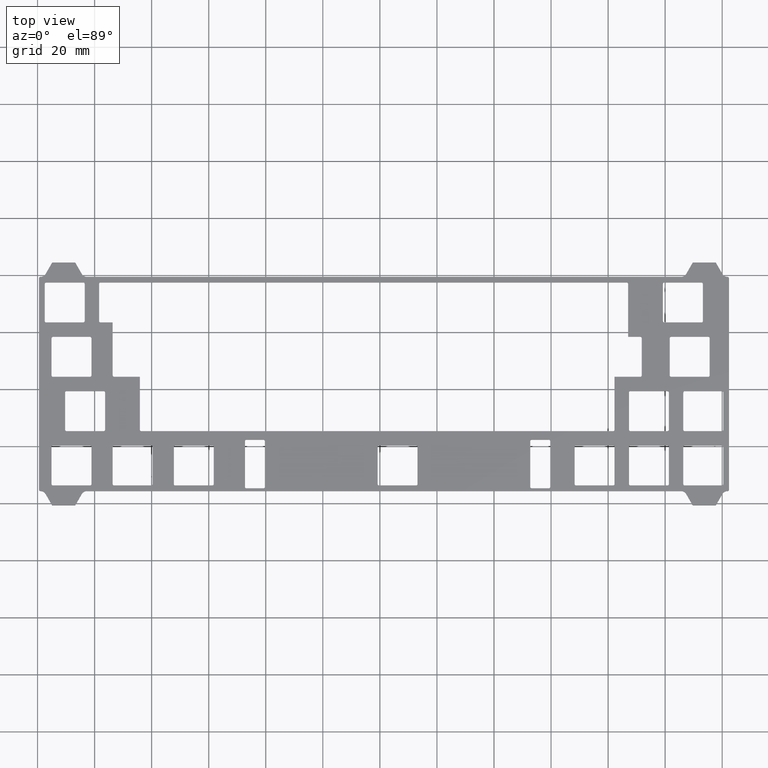
[diagram: clean part render]
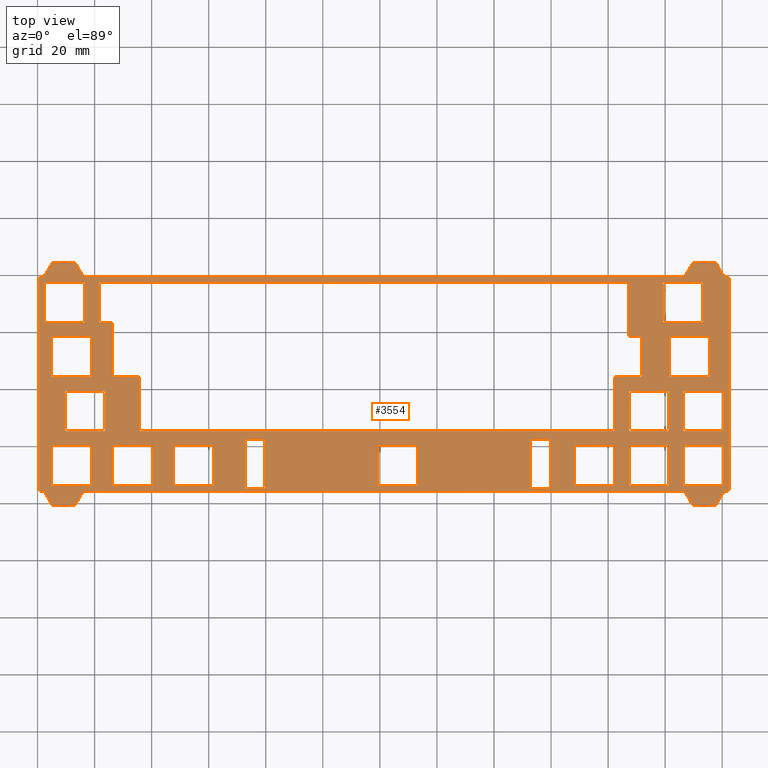
[diagram: same view with one face highlighted and labeled with its STEP entity id]
A machine part, top view. The second image highlights one B-rep face of the part: STEP entity #3554.
In plain terms, the highlighted planar face has unit normal (0, 0, 1).
Its self-contained STEP definition (entity closure, byte-faithful):
#15=FACE_BOUND('',#517,.T.);
#16=FACE_BOUND('',#518,.T.);
#17=FACE_BOUND('',#519,.T.);
#18=FACE_BOUND('',#520,.T.);
#19=FACE_BOUND('',#521,.T.);
#20=FACE_BOUND('',#522,.T.);
#21=FACE_BOUND('',#523,.T.);
#22=FACE_BOUND('',#524,.T.);
#23=FACE_BOUND('',#525,.T.);
#24=FACE_BOUND('',#526,.T.);
#25=FACE_BOUND('',#527,.T.);
#26=FACE_BOUND('',#528,.T.);
#27=FACE_BOUND('',#529,.T.);
#28=FACE_BOUND('',#530,.T.);
#29=FACE_BOUND('',#531,.T.);
#30=FACE_BOUND('',#532,.T.);
#31=FACE_BOUND('',#533,.T.);
#50=CIRCLE('',#3722,1.99999999999995);
#52=CIRCLE('',#3726,1.99999999999997);
#54=CIRCLE('',#3732,2.);
#56=CIRCLE('',#3736,0.500000000000011);
#58=CIRCLE('',#3740,0.500000000000002);
#60=CIRCLE('',#3744,2.);
#62=CIRCLE('',#3750,1.99999999999996);
#64=CIRCLE('',#3754,1.99999999999996);
#66=CIRCLE('',#3760,1.99999999999999);
#68=CIRCLE('',#3764,0.499999999999972);
#70=CIRCLE('',#3768,0.500000000000016);
#72=CIRCLE('',#3772,2.);
#73=CIRCLE('',#3775,0.500000000000007);
#74=CIRCLE('',#3776,0.499999999999998);
#75=CIRCLE('',#3777,0.500000000000007);
#76=CIRCLE('',#3778,0.499999999999998);
#77=CIRCLE('',#3779,0.500000000000007);
#78=CIRCLE('',#3780,0.499999999999998);
#79=CIRCLE('',#3781,0.500000000000007);
#80=CIRCLE('',#3782,0.499999999999998);
#81=CIRCLE('',#3783,0.500000000000007);
#82=CIRCLE('',#3784,0.499999999999998);
#83=CIRCLE('',#3785,0.500000000000007);
#84=CIRCLE('',#3786,0.499999999999998);
#85=CIRCLE('',#3787,0.500000000000007);
#86=CIRCLE('',#3788,0.499999999999998);
#87=CIRCLE('',#3789,0.500000000000007);
#88=CIRCLE('',#3790,0.499999999999998);
#89=CIRCLE('',#3791,0.5);
#90=CIRCLE('',#3792,0.499999999999998);
#91=CIRCLE('',#3793,0.5);
#92=CIRCLE('',#3794,0.499999999999998);
#93=CIRCLE('',#3795,0.500000000000003);
#94=CIRCLE('',#3796,0.499999999999998);
#95=CIRCLE('',#3797,0.499999999999998);
#96=CIRCLE('',#3798,0.499999999999998);
#97=CIRCLE('',#3799,0.500000000000007);
#98=CIRCLE('',#3800,0.499999999999998);
#99=CIRCLE('',#3801,0.500000000000007);
#100=CIRCLE('',#3802,0.499999999999998);
#101=CIRCLE('',#3803,0.499999999999998);
#102=CIRCLE('',#3804,0.499999999999998);
#103=CIRCLE('',#3805,0.499999999999998);
#104=CIRCLE('',#3806,0.499999999999998);
#105=CIRCLE('',#3807,0.499999999999998);
#106=CIRCLE('',#3808,0.500000000000007);
#107=CIRCLE('',#3809,0.499999999999998);
#108=CIRCLE('',#3810,0.500000000000007);
#109=CIRCLE('',#3811,0.499999999999998);
#110=CIRCLE('',#3812,0.499999999999998);
#111=CIRCLE('',#3813,0.5);
#112=CIRCLE('',#3814,0.499999999999998);
#113=CIRCLE('',#3815,0.500000000000007);
#114=CIRCLE('',#3816,0.499999999999998);
#115=CIRCLE('',#3817,0.500000000000007);
#116=CIRCLE('',#3818,0.499999999999998);
#117=CIRCLE('',#3819,0.499999999999998);
#118=CIRCLE('',#3820,0.5);
#119=CIRCLE('',#3821,0.499999999999998);
#120=CIRCLE('',#3822,0.5);
#121=CIRCLE('',#3823,0.500000000000007);
#122=CIRCLE('',#3824,0.5);
#123=CIRCLE('',#3825,0.500000000000007);
#124=CIRCLE('',#3826,0.5);
#125=CIRCLE('',#3827,0.5);
#126=CIRCLE('',#3828,0.5);
#127=CIRCLE('',#3829,0.5);
#128=CIRCLE('',#3830,0.5);
#129=CIRCLE('',#3831,0.499999999999998);
#130=CIRCLE('',#3832,0.499999999999998);
#131=CIRCLE('',#3833,0.499999999999998);
#132=CIRCLE('',#3834,0.5);
#133=CIRCLE('',#3835,0.500000000000007);
#134=CIRCLE('',#3836,0.500000000000007);
#135=CIRCLE('',#3837,0.499999999999998);
#136=CIRCLE('',#3838,0.499999999999998);
#137=CIRCLE('',#3839,0.499999999999972);
#138=CIRCLE('',#3840,0.499999999999972);
#139=CIRCLE('',#3841,0.499999999999998);
#140=CIRCLE('',#3842,0.500000000000007);
#141=CIRCLE('',#3843,0.499999999999998);
#142=CIRCLE('',#3844,0.499999999999998);
#143=CIRCLE('',#3845,0.499999999999998);
#144=CIRCLE('',#3846,0.499999999999998);
#334=FACE_OUTER_BOUND('',#516,.T.);
#516=EDGE_LOOP('',(#2475,#2476,#2477,#2478,#2479,#2480,#2481,#2482,#2483,
#2484,#2485,#2486,#2487,#2488,#2489,#2490,#2491,#2492,#2493,#2494,#2495,
#2496,#2497,#2498,#2499,#2500,#2501,#2502,#2503,#2504,#2505,#2506));
#517=EDGE_LOOP('',(#2507,#2508,#2509,#2510,#2511,#2512,#2513,#2514));
#518=EDGE_LOOP('',(#2515,#2516,#2517,#2518,#2519,#2520,#2521,#2522));
#519=EDGE_LOOP('',(#2523,#2524,#2525,#2526,#2527,#2528,#2529,#2530));
#520=EDGE_LOOP('',(#2531,#2532,#2533,#2534,#2535,#2536,#2537,#2538));
#521=EDGE_LOOP('',(#2539,#2540,#2541,#2542,#2543,#2544,#2545,#2546));
#522=EDGE_LOOP('',(#2547,#2548,#2549,#2550,#2551,#2552,#2553,#2554));
#523=EDGE_LOOP('',(#2555,#2556,#2557,#2558,#2559,#2560,#2561,#2562));
#524=EDGE_LOOP('',(#2563,#2564,#2565,#2566,#2567,#2568,#2569,#2570));
#525=EDGE_LOOP('',(#2571,#2572,#2573,#2574,#2575,#2576,#2577,#2578));
#526=EDGE_LOOP('',(#2579,#2580,#2581,#2582,#2583,#2584,#2585,#2586));
#527=EDGE_LOOP('',(#2587,#2588,#2589,#2590,#2591,#2592,#2593,#2594));
#528=EDGE_LOOP('',(#2595,#2596,#2597,#2598,#2599,#2600,#2601,#2602));
#529=EDGE_LOOP('',(#2603,#2604,#2605,#2606,#2607,#2608,#2609,#2610));
#530=EDGE_LOOP('',(#2611,#2612,#2613,#2614,#2615,#2616,#2617,#2618));
#531=EDGE_LOOP('',(#2619,#2620,#2621,#2622,#2623,#2624,#2625,#2626,#2627,
#2628,#2629,#2630,#2631,#2632,#2633,#2634,#2635,#2636,#2637,#2638));
#532=EDGE_LOOP('',(#2639,#2640,#2641,#2642,#2643,#2644,#2645,#2646));
#533=EDGE_LOOP('',(#2647,#2648,#2649,#2650,#2651,#2652,#2653,#2654));
#701=LINE('',#5149,#1073);
#704=LINE('',#5155,#1076);
#707=LINE('',#5161,#1079);
#711=LINE('',#5173,#1083);
#715=LINE('',#5185,#1087);
#718=LINE('',#5191,#1090);
#721=LINE('',#5197,#1093);
#725=LINE('',#5209,#1097);
#729=LINE('',#5221,#1101);
#733=LINE('',#5233,#1105);
#737=LINE('',#5245,#1109);
#740=LINE('',#5251,#1112);
#743=LINE('',#5257,#1115);
#747=LINE('',#5269,#1119);
#751=LINE('',#5281,#1123);
#754=LINE('',#5287,#1126);
#757=LINE('',#5293,#1129);
#761=LINE('',#5305,#1133);
#765=LINE('',#5317,#1137);
#769=LINE('',#5329,#1141);
#774=LINE('',#5342,#1146);
#775=LINE('',#5346,#1147);
#776=LINE('',#5350,#1148);
#777=LINE('',#5354,#1149);
#778=LINE('',#5358,#1150);
#779=LINE('',#5362,#1151);
#780=LINE('',#5366,#1152);
#781=LINE('',#5370,#1153);
#782=LINE('',#5374,#1154);
#783=LINE('',#5378,#1155);
#784=LINE('',#5382,#1156);
#785=LINE('',#5386,#1157);
#786=LINE('',#5390,#1158);
#787=LINE('',#5394,#1159);
#788=LINE('',#5398,#1160);
#789=LINE('',#5402,#1161);
#790=LINE('',#5406,#1162);
#791=LINE('',#5410,#1163);
#792=LINE('',#5414,#1164);
#793=LINE('',#5418,#1165);
#794=LINE('',#5422,#1166);
#795=LINE('',#5426,#1167);
#796=LINE('',#5430,#1168);
#797=LINE('',#5434,#1169);
#798=LINE('',#5438,#1170);
#799=LINE('',#5442,#1171);
#800=LINE('',#5446,#1172);
#801=LINE('',#5450,#1173);
#802=LINE('',#5454,#1174);
#803=LINE('',#5460,#1175);
#804=LINE('',#5464,#1176);
#805=LINE('',#5468,#1177);
#806=LINE('',#5471,#1178);
#807=LINE('',#5474,#1179);
#808=LINE('',#5478,#1180);
#809=LINE('',#5482,#1181);
#810=LINE('',#5486,#1182);
#811=LINE('',#5490,#1183);
#812=LINE('',#5494,#1184);
#813=LINE('',#5498,#1185);
#814=LINE('',#5502,#1186);
#815=LINE('',#5506,#1187);
#816=LINE('',#5510,#1188);
#817=LINE('',#5514,#1189);
#818=LINE('',#5518,#1190);
#819=LINE('',#5524,#1191);
#820=LINE('',#5528,#1192);
#821=LINE('',#5532,#1193);
#822=LINE('',#5535,#1194);
#823=LINE('',#5538,#1195);
#824=LINE('',#5542,#1196);
#825=LINE('',#5546,#1197);
#826=LINE('',#5550,#1198);
#827=LINE('',#5554,#1199);
#828=LINE('',#5558,#1200);
#829=LINE('',#5562,#1201);
#830=LINE('',#5566,#1202);
#831=LINE('',#5570,#1203);
#832=LINE('',#5574,#1204);
#833=LINE('',#5576,#1205);
#834=LINE('',#5580,#1206);
#835=LINE('',#5582,#1207);
#836=LINE('',#5586,#1208);
#837=LINE('',#5590,#1209);
#838=LINE('',#5593,#1210);
#839=LINE('',#5597,#1211);
#840=LINE('',#5601,#1212);
#841=LINE('',#5603,#1213);
#842=LINE('',#5607,#1214);
#843=LINE('',#5611,#1215);
#844=LINE('',#5615,#1216);
#845=LINE('',#5619,#1217);
#846=LINE('',#5623,#1218);
#847=LINE('',#5627,#1219);
#848=LINE('',#5631,#1220);
#849=LINE('',#5635,#1221);
#1073=VECTOR('',#4073,10.);
#1076=VECTOR('',#4078,10.);
#1079=VECTOR('',#4083,10.);
#1083=VECTOR('',#4095,10.);
#1087=VECTOR('',#4107,10.);
#1090=VECTOR('',#4112,10.);
#1093=VECTOR('',#4117,10.);
#1097=VECTOR('',#4129,10.);
#1101=VECTOR('',#4141,10.);
#1105=VECTOR('',#4153,10.);
#1109=VECTOR('',#4165,10.);
#1112=VECTOR('',#4170,10.);
#1115=VECTOR('',#4175,10.);
#1119=VECTOR('',#4187,10.);
#1123=VECTOR('',#4199,10.);
#1126=VECTOR('',#4204,10.);
#1129=VECTOR('',#4209,10.);
#1133=VECTOR('',#4221,10.);
#1137=VECTOR('',#4233,10.);
#1141=VECTOR('',#4245,10.);
#1146=VECTOR('',#4258,10.);
#1147=VECTOR('',#4261,10.);
#1148=VECTOR('',#4264,10.);
#1149=VECTOR('',#4267,10.);
#1150=VECTOR('',#4270,10.);
#1151=VECTOR('',#4273,10.);
#1152=VECTOR('',#4276,10.);
#1153=VECTOR('',#4279,10.);
#1154=VECTOR('',#4282,10.);
#1155=VECTOR('',#4285,10.);
#1156=VECTOR('',#4288,10.);
#1157=VECTOR('',#4291,10.);
#1158=VECTOR('',#4294,10.);
#1159=VECTOR('',#4297,10.);
#1160=VECTOR('',#4300,10.);
#1161=VECTOR('',#4303,10.);
#1162=VECTOR('',#4306,10.);
#1163=VECTOR('',#4309,10.);
#1164=VECTOR('',#4312,10.);
#1165=VECTOR('',#4315,10.);
#1166=VECTOR('',#4318,10.);
#1167=VECTOR('',#4321,10.);
#1168=VECTOR('',#4324,10.);
#1169=VECTOR('',#4327,10.);
#1170=VECTOR('',#4330,10.);
#1171=VECTOR('',#4333,10.);
#1172=VECTOR('',#4336,10.);
#1173=VECTOR('',#4339,10.);
#1174=VECTOR('',#4342,10.);
#1175=VECTOR('',#4347,10.);
#1176=VECTOR('',#4350,10.);
#1177=VECTOR('',#4353,10.);
#1178=VECTOR('',#4356,10.);
#1179=VECTOR('',#4357,10.);
#1180=VECTOR('',#4360,10.);
#1181=VECTOR('',#4363,10.);
#1182=VECTOR('',#4366,10.);
#1183=VECTOR('',#4369,10.);
#1184=VECTOR('',#4372,10.);
#1185=VECTOR('',#4375,10.);
#1186=VECTOR('',#4378,10.);
#1187=VECTOR('',#4381,10.);
#1188=VECTOR('',#4384,10.);
#1189=VECTOR('',#4387,10.);
#1190=VECTOR('',#4390,10.);
#1191=VECTOR('',#4395,10.);
#1192=VECTOR('',#4398,10.);
#1193=VECTOR('',#4401,10.);
#1194=VECTOR('',#4404,10.);
#1195=VECTOR('',#4405,10.);
#1196=VECTOR('',#4408,10.);
#1197=VECTOR('',#4411,10.);
#1198=VECTOR('',#4414,10.);
#1199=VECTOR('',#4417,10.);
#1200=VECTOR('',#4420,10.);
#1201=VECTOR('',#4423,10.);
#1202=VECTOR('',#4426,10.);
#1203=VECTOR('',#4429,10.);
#1204=VECTOR('',#4432,10.);
#1205=VECTOR('',#4433,10.);
#1206=VECTOR('',#4436,10.);
#1207=VECTOR('',#4437,10.);
#1208=VECTOR('',#4440,10.);
#1209=VECTOR('',#4443,10.);
#1210=VECTOR('',#4446,10.);
#1211=VECTOR('',#4449,10.);
#1212=VECTOR('',#4452,10.);
#1213=VECTOR('',#4453,10.);
#1214=VECTOR('',#4456,10.);
#1215=VECTOR('',#4459,10.);
#1216=VECTOR('',#4462,10.);
#1217=VECTOR('',#4465,10.);
#1218=VECTOR('',#4468,10.);
#1219=VECTOR('',#4471,10.);
#1220=VECTOR('',#4474,10.);
#1221=VECTOR('',#4477,10.);
#1445=VERTEX_POINT('',#5146);
#1446=VERTEX_POINT('',#5148);
#1448=VERTEX_POINT('',#5154);
#1450=VERTEX_POINT('',#5160);
#1452=VERTEX_POINT('',#5166);
#1454=VERTEX_POINT('',#5172);
#1456=VERTEX_POINT('',#5178);
#1458=VERTEX_POINT('',#5184);
#1460=VERTEX_POINT('',#5190);
#1462=VERTEX_POINT('',#5196);
#1464=VERTEX_POINT('',#5202);
#1466=VERTEX_POINT('',#5208);
#1468=VERTEX_POINT('',#5214);
#1470=VERTEX_POINT('',#5220);
#1472=VERTEX_POINT('',#5226);
#1474=VERTEX_POINT('',#5232);
#1476=VERTEX_POINT('',#5238);
#1478=VERTEX_POINT('',#5244);
#1480=VERTEX_POINT('',#5250);
#1482=VERTEX_POINT('',#5256);
#1484=VERTEX_POINT('',#5262);
#1486=VERTEX_POINT('',#5268);
#1488=VERTEX_POINT('',#5274);
#1490=VERTEX_POINT('',#5280);
#1492=VERTEX_POINT('',#5286);
#1494=VERTEX_POINT('',#5292);
#1496=VERTEX_POINT('',#5298);
#1498=VERTEX_POINT('',#5304);
#1500=VERTEX_POINT('',#5310);
#1502=VERTEX_POINT('',#5316);
#1504=VERTEX_POINT('',#5322);
#1506=VERTEX_POINT('',#5328);
#1507=VERTEX_POINT('',#5335);
#1510=VERTEX_POINT('',#5340);
#1511=VERTEX_POINT('',#5344);
#1512=VERTEX_POINT('',#5345);
#1513=VERTEX_POINT('',#5347);
#1514=VERTEX_POINT('',#5349);
#1515=VERTEX_POINT('',#5351);
#1516=VERTEX_POINT('',#5353);
#1517=VERTEX_POINT('',#5355);
#1518=VERTEX_POINT('',#5357);
#1519=VERTEX_POINT('',#5360);
#1520=VERTEX_POINT('',#5361);
#1521=VERTEX_POINT('',#5363);
#1522=VERTEX_POINT('',#5365);
#1523=VERTEX_POINT('',#5367);
#1524=VERTEX_POINT('',#5369);
#1525=VERTEX_POINT('',#5371);
#1526=VERTEX_POINT('',#5373);
#1527=VERTEX_POINT('',#5376);
#1528=VERTEX_POINT('',#5377);
#1529=VERTEX_POINT('',#5379);
#1530=VERTEX_POINT('',#5381);
#1531=VERTEX_POINT('',#5383);
#1532=VERTEX_POINT('',#5385);
#1533=VERTEX_POINT('',#5387);
#1534=VERTEX_POINT('',#5389);
#1535=VERTEX_POINT('',#5392);
#1536=VERTEX_POINT('',#5393);
#1537=VERTEX_POINT('',#5395);
#1538=VERTEX_POINT('',#5397);
#1539=VERTEX_POINT('',#5399);
#1540=VERTEX_POINT('',#5401);
#1541=VERTEX_POINT('',#5403);
#1542=VERTEX_POINT('',#5405);
#1543=VERTEX_POINT('',#5408);
#1544=VERTEX_POINT('',#5409);
#1545=VERTEX_POINT('',#5411);
#1546=VERTEX_POINT('',#5413);
#1547=VERTEX_POINT('',#5415);
#1548=VERTEX_POINT('',#5417);
#1549=VERTEX_POINT('',#5419);
#1550=VERTEX_POINT('',#5421);
#1551=VERTEX_POINT('',#5424);
#1552=VERTEX_POINT('',#5425);
#1553=VERTEX_POINT('',#5427);
#1554=VERTEX_POINT('',#5429);
#1555=VERTEX_POINT('',#5431);
#1556=VERTEX_POINT('',#5433);
#1557=VERTEX_POINT('',#5435);
#1558=VERTEX_POINT('',#5437);
#1559=VERTEX_POINT('',#5440);
#1560=VERTEX_POINT('',#5441);
#1561=VERTEX_POINT('',#5443);
#1562=VERTEX_POINT('',#5445);
#1563=VERTEX_POINT('',#5447);
#1564=VERTEX_POINT('',#5449);
#1565=VERTEX_POINT('',#5451);
#1566=VERTEX_POINT('',#5453);
#1567=VERTEX_POINT('',#5456);
#1568=VERTEX_POINT('',#5457);
#1569=VERTEX_POINT('',#5459);
#1570=VERTEX_POINT('',#5461);
#1571=VERTEX_POINT('',#5463);
#1572=VERTEX_POINT('',#5465);
#1573=VERTEX_POINT('',#5467);
#1574=VERTEX_POINT('',#5469);
#1575=VERTEX_POINT('',#5472);
#1576=VERTEX_POINT('',#5473);
#1577=VERTEX_POINT('',#5475);
#1578=VERTEX_POINT('',#5477);
#1579=VERTEX_POINT('',#5479);
#1580=VERTEX_POINT('',#5481);
#1581=VERTEX_POINT('',#5483);
#1582=VERTEX_POINT('',#5485);
#1583=VERTEX_POINT('',#5488);
#1584=VERTEX_POINT('',#5489);
#1585=VERTEX_POINT('',#5491);
#1586=VERTEX_POINT('',#5493);
#1587=VERTEX_POINT('',#5495);
#1588=VERTEX_POINT('',#5497);
#1589=VERTEX_POINT('',#5499);
#1590=VERTEX_POINT('',#5501);
#1591=VERTEX_POINT('',#5504);
#1592=VERTEX_POINT('',#5505);
#1593=VERTEX_POINT('',#5507);
#1594=VERTEX_POINT('',#5509);
#1595=VERTEX_POINT('',#5511);
#1596=VERTEX_POINT('',#5513);
#1597=VERTEX_POINT('',#5515);
#1598=VERTEX_POINT('',#5517);
#1599=VERTEX_POINT('',#5520);
#1600=VERTEX_POINT('',#5521);
#1601=VERTEX_POINT('',#5523);
#1602=VERTEX_POINT('',#5525);
#1603=VERTEX_POINT('',#5527);
#1604=VERTEX_POINT('',#5529);
#1605=VERTEX_POINT('',#5531);
#1606=VERTEX_POINT('',#5533);
#1607=VERTEX_POINT('',#5536);
#1608=VERTEX_POINT('',#5537);
#1609=VERTEX_POINT('',#5539);
#1610=VERTEX_POINT('',#5541);
#1611=VERTEX_POINT('',#5543);
#1612=VERTEX_POINT('',#5545);
#1613=VERTEX_POINT('',#5547);
#1614=VERTEX_POINT('',#5549);
#1615=VERTEX_POINT('',#5552);
#1616=VERTEX_POINT('',#5553);
#1617=VERTEX_POINT('',#5555);
#1618=VERTEX_POINT('',#5557);
#1619=VERTEX_POINT('',#5559);
#1620=VERTEX_POINT('',#5561);
#1621=VERTEX_POINT('',#5563);
#1622=VERTEX_POINT('',#5565);
#1623=VERTEX_POINT('',#5568);
#1624=VERTEX_POINT('',#5569);
#1625=VERTEX_POINT('',#5571);
#1626=VERTEX_POINT('',#5573);
#1627=VERTEX_POINT('',#5575);
#1628=VERTEX_POINT('',#5577);
#1629=VERTEX_POINT('',#5579);
#1630=VERTEX_POINT('',#5581);
#1631=VERTEX_POINT('',#5583);
#1632=VERTEX_POINT('',#5585);
#1633=VERTEX_POINT('',#5587);
#1634=VERTEX_POINT('',#5589);
#1635=VERTEX_POINT('',#5591);
#1636=VERTEX_POINT('',#5594);
#1637=VERTEX_POINT('',#5596);
#1638=VERTEX_POINT('',#5598);
#1639=VERTEX_POINT('',#5600);
#1640=VERTEX_POINT('',#5602);
#1641=VERTEX_POINT('',#5605);
#1642=VERTEX_POINT('',#5606);
#1643=VERTEX_POINT('',#5608);
#1644=VERTEX_POINT('',#5610);
#1645=VERTEX_POINT('',#5612);
#1646=VERTEX_POINT('',#5614);
#1647=VERTEX_POINT('',#5616);
#1648=VERTEX_POINT('',#5618);
#1649=VERTEX_POINT('',#5621);
#1650=VERTEX_POINT('',#5622);
#1651=VERTEX_POINT('',#5624);
#1652=VERTEX_POINT('',#5626);
#1653=VERTEX_POINT('',#5628);
#1654=VERTEX_POINT('',#5630);
#1655=VERTEX_POINT('',#5632);
#1656=VERTEX_POINT('',#5634);
#1805=EDGE_CURVE('',#1446,#1445,#701,.T.);
#1808=EDGE_CURVE('',#1448,#1446,#704,.T.);
#1811=EDGE_CURVE('',#1450,#1448,#707,.T.);
#1814=EDGE_CURVE('',#1452,#1450,#50,.T.);
#1817=EDGE_CURVE('',#1454,#1452,#711,.T.);
#1820=EDGE_CURVE('',#1456,#1454,#52,.T.);
#1823=EDGE_CURVE('',#1458,#1456,#715,.T.);
#1826=EDGE_CURVE('',#1460,#1458,#718,.T.);
#1829=EDGE_CURVE('',#1462,#1460,#721,.T.);
#1832=EDGE_CURVE('',#1464,#1462,#54,.T.);
#1835=EDGE_CURVE('',#1466,#1464,#725,.T.);
#1838=EDGE_CURVE('',#1468,#1466,#56,.T.);
#1841=EDGE_CURVE('',#1470,#1468,#729,.T.);
#1844=EDGE_CURVE('',#1472,#1470,#58,.T.);
#1847=EDGE_CURVE('',#1474,#1472,#733,.T.);
#1850=EDGE_CURVE('',#1476,#1474,#60,.T.);
#1853=EDGE_CURVE('',#1478,#1476,#737,.T.);
#1856=EDGE_CURVE('',#1480,#1478,#740,.T.);
#1859=EDGE_CURVE('',#1482,#1480,#743,.T.);
#1862=EDGE_CURVE('',#1484,#1482,#62,.T.);
#1865=EDGE_CURVE('',#1486,#1484,#747,.T.);
#1868=EDGE_CURVE('',#1488,#1486,#64,.T.);
#1871=EDGE_CURVE('',#1490,#1488,#751,.T.);
#1874=EDGE_CURVE('',#1492,#1490,#754,.T.);
#1877=EDGE_CURVE('',#1494,#1492,#757,.T.);
#1880=EDGE_CURVE('',#1496,#1494,#66,.T.);
#1883=EDGE_CURVE('',#1498,#1496,#761,.T.);
#1886=EDGE_CURVE('',#1500,#1498,#68,.T.);
#1889=EDGE_CURVE('',#1502,#1500,#765,.T.);
#1892=EDGE_CURVE('',#1504,#1502,#70,.T.);
#1895=EDGE_CURVE('',#1506,#1504,#769,.T.);
#1898=EDGE_CURVE('',#1445,#1506,#72,.T.);
#1902=EDGE_CURVE('',#1507,#1510,#774,.T.);
#1903=EDGE_CURVE('',#1511,#1512,#775,.T.);
#1904=EDGE_CURVE('',#1512,#1513,#73,.T.);
#1905=EDGE_CURVE('',#1513,#1514,#776,.T.);
#1906=EDGE_CURVE('',#1514,#1515,#74,.T.);
#1907=EDGE_CURVE('',#1515,#1516,#777,.T.);
#1908=EDGE_CURVE('',#1516,#1517,#75,.T.);
#1909=EDGE_CURVE('',#1517,#1518,#778,.T.);
#1910=EDGE_CURVE('',#1518,#1511,#76,.T.);
#1911=EDGE_CURVE('',#1519,#1520,#779,.T.);
#1912=EDGE_CURVE('',#1520,#1521,#77,.T.);
#1913=EDGE_CURVE('',#1521,#1522,#780,.T.);
#1914=EDGE_CURVE('',#1522,#1523,#78,.T.);
#1915=EDGE_CURVE('',#1523,#1524,#781,.T.);
#1916=EDGE_CURVE('',#1524,#1525,#79,.T.);
#1917=EDGE_CURVE('',#1525,#1526,#782,.T.);
#1918=EDGE_CURVE('',#1526,#1519,#80,.T.);
#1919=EDGE_CURVE('',#1527,#1528,#783,.T.);
#1920=EDGE_CURVE('',#1528,#1529,#81,.T.);
#1921=EDGE_CURVE('',#1529,#1530,#784,.T.);
#1922=EDGE_CURVE('',#1530,#1531,#82,.T.);
#1923=EDGE_CURVE('',#1531,#1532,#785,.T.);
#1924=EDGE_CURVE('',#1532,#1533,#83,.T.);
#1925=EDGE_CURVE('',#1533,#1534,#786,.T.);
#1926=EDGE_CURVE('',#1534,#1527,#84,.T.);
#1927=EDGE_CURVE('',#1535,#1536,#787,.T.);
#1928=EDGE_CURVE('',#1536,#1537,#85,.T.);
#1929=EDGE_CURVE('',#1537,#1538,#788,.T.);
#1930=EDGE_CURVE('',#1538,#1539,#86,.T.);
#1931=EDGE_CURVE('',#1539,#1540,#789,.T.);
#1932=EDGE_CURVE('',#1540,#1541,#87,.T.);
#1933=EDGE_CURVE('',#1541,#1542,#790,.T.);
#1934=EDGE_CURVE('',#1542,#1535,#88,.T.);
#1935=EDGE_CURVE('',#1543,#1544,#791,.T.);
#1936=EDGE_CURVE('',#1544,#1545,#89,.T.);
#1937=EDGE_CURVE('',#1545,#1546,#792,.T.);
#1938=EDGE_CURVE('',#1546,#1547,#90,.T.);
#1939=EDGE_CURVE('',#1547,#1548,#793,.T.);
#1940=EDGE_CURVE('',#1548,#1549,#91,.T.);
#1941=EDGE_CURVE('',#1549,#1550,#794,.T.);
#1942=EDGE_CURVE('',#1550,#1543,#92,.T.);
#1943=EDGE_CURVE('',#1551,#1552,#795,.T.);
#1944=EDGE_CURVE('',#1552,#1553,#93,.T.);
#1945=EDGE_CURVE('',#1553,#1554,#796,.T.);
#1946=EDGE_CURVE('',#1554,#1555,#94,.T.);
#1947=EDGE_CURVE('',#1555,#1556,#797,.T.);
#1948=EDGE_CURVE('',#1556,#1557,#95,.T.);
#1949=EDGE_CURVE('',#1557,#1558,#798,.T.);
#1950=EDGE_CURVE('',#1558,#1551,#96,.T.);
#1951=EDGE_CURVE('',#1559,#1560,#799,.T.);
#1952=EDGE_CURVE('',#1560,#1561,#97,.T.);
#1953=EDGE_CURVE('',#1561,#1562,#800,.T.);
#1954=EDGE_CURVE('',#1562,#1563,#98,.T.);
#1955=EDGE_CURVE('',#1563,#1564,#801,.T.);
#1956=EDGE_CURVE('',#1564,#1565,#99,.T.);
#1957=EDGE_CURVE('',#1565,#1566,#802,.T.);
#1958=EDGE_CURVE('',#1566,#1559,#100,.T.);
#1959=EDGE_CURVE('',#1567,#1568,#101,.T.);
#1960=EDGE_CURVE('',#1568,#1569,#803,.T.);
#1961=EDGE_CURVE('',#1569,#1570,#102,.T.);
#1962=EDGE_CURVE('',#1570,#1571,#804,.T.);
#1963=EDGE_CURVE('',#1571,#1572,#103,.T.);
#1964=EDGE_CURVE('',#1572,#1573,#805,.T.);
#1965=EDGE_CURVE('',#1573,#1574,#104,.T.);
#1966=EDGE_CURVE('',#1574,#1567,#806,.T.);
#1967=EDGE_CURVE('',#1575,#1576,#807,.T.);
#1968=EDGE_CURVE('',#1576,#1577,#105,.T.);
#1969=EDGE_CURVE('',#1577,#1578,#808,.T.);
#1970=EDGE_CURVE('',#1578,#1579,#106,.T.);
#1971=EDGE_CURVE('',#1579,#1580,#809,.T.);
#1972=EDGE_CURVE('',#1580,#1581,#107,.T.);
#1973=EDGE_CURVE('',#1581,#1582,#810,.T.);
#1974=EDGE_CURVE('',#1582,#1575,#108,.T.);
#1975=EDGE_CURVE('',#1583,#1584,#811,.T.);
#1976=EDGE_CURVE('',#1584,#1585,#109,.T.);
#1977=EDGE_CURVE('',#1585,#1586,#812,.T.);
#1978=EDGE_CURVE('',#1586,#1587,#110,.T.);
#1979=EDGE_CURVE('',#1587,#1588,#813,.T.);
#1980=EDGE_CURVE('',#1588,#1589,#111,.T.);
#1981=EDGE_CURVE('',#1589,#1590,#814,.T.);
#1982=EDGE_CURVE('',#1590,#1583,#112,.T.);
#1983=EDGE_CURVE('',#1591,#1592,#815,.T.);
#1984=EDGE_CURVE('',#1592,#1593,#113,.T.);
#1985=EDGE_CURVE('',#1593,#1594,#816,.T.);
#1986=EDGE_CURVE('',#1594,#1595,#114,.T.);
#1987=EDGE_CURVE('',#1595,#1596,#817,.T.);
#1988=EDGE_CURVE('',#1596,#1597,#115,.T.);
#1989=EDGE_CURVE('',#1597,#1598,#818,.T.);
#1990=EDGE_CURVE('',#1598,#1591,#116,.T.);
#1991=EDGE_CURVE('',#1599,#1600,#117,.T.);
#1992=EDGE_CURVE('',#1600,#1601,#819,.T.);
#1993=EDGE_CURVE('',#1601,#1602,#118,.T.);
#1994=EDGE_CURVE('',#1602,#1603,#820,.T.);
#1995=EDGE_CURVE('',#1603,#1604,#119,.T.);
#1996=EDGE_CURVE('',#1604,#1605,#821,.T.);
#1997=EDGE_CURVE('',#1605,#1606,#120,.T.);
#1998=EDGE_CURVE('',#1606,#1599,#822,.T.);
#1999=EDGE_CURVE('',#1607,#1608,#823,.T.);
#2000=EDGE_CURVE('',#1608,#1609,#121,.T.);
#2001=EDGE_CURVE('',#1609,#1610,#824,.T.);
#2002=EDGE_CURVE('',#1610,#1611,#122,.T.);
#2003=EDGE_CURVE('',#1611,#1612,#825,.T.);
#2004=EDGE_CURVE('',#1612,#1613,#123,.T.);
#2005=EDGE_CURVE('',#1613,#1614,#826,.T.);
#2006=EDGE_CURVE('',#1614,#1607,#124,.T.);
#2007=EDGE_CURVE('',#1615,#1616,#827,.T.);
#2008=EDGE_CURVE('',#1616,#1617,#125,.T.);
#2009=EDGE_CURVE('',#1617,#1618,#828,.T.);
#2010=EDGE_CURVE('',#1618,#1619,#126,.T.);
#2011=EDGE_CURVE('',#1619,#1620,#829,.T.);
#2012=EDGE_CURVE('',#1620,#1621,#127,.T.);
#2013=EDGE_CURVE('',#1621,#1622,#830,.T.);
#2014=EDGE_CURVE('',#1622,#1615,#128,.T.);
#2015=EDGE_CURVE('',#1623,#1624,#831,.T.);
#2016=EDGE_CURVE('',#1624,#1625,#129,.T.);
#2017=EDGE_CURVE('',#1625,#1626,#832,.T.);
#2018=EDGE_CURVE('',#1626,#1627,#833,.T.);
#2019=EDGE_CURVE('',#1627,#1628,#130,.T.);
#2020=EDGE_CURVE('',#1628,#1629,#834,.T.);
#2021=EDGE_CURVE('',#1629,#1630,#835,.T.);
#2022=EDGE_CURVE('',#1630,#1631,#131,.T.);
#2023=EDGE_CURVE('',#1631,#1632,#836,.T.);
#2024=EDGE_CURVE('',#1632,#1633,#132,.T.);
#2025=EDGE_CURVE('',#1633,#1634,#837,.T.);
#2026=EDGE_CURVE('',#1634,#1635,#133,.T.);
#2027=EDGE_CURVE('',#1635,#1507,#838,.T.);
#2028=EDGE_CURVE('',#1510,#1636,#134,.T.);
#2029=EDGE_CURVE('',#1636,#1637,#839,.T.);
#2030=EDGE_CURVE('',#1637,#1638,#135,.T.);
#2031=EDGE_CURVE('',#1638,#1639,#840,.T.);
#2032=EDGE_CURVE('',#1639,#1640,#841,.T.);
#2033=EDGE_CURVE('',#1640,#1623,#136,.T.);
#2034=EDGE_CURVE('',#1641,#1642,#842,.T.);
#2035=EDGE_CURVE('',#1642,#1643,#137,.T.);
#2036=EDGE_CURVE('',#1643,#1644,#843,.T.);
#2037=EDGE_CURVE('',#1644,#1645,#138,.T.);
#2038=EDGE_CURVE('',#1645,#1646,#844,.T.);
#2039=EDGE_CURVE('',#1647,#1646,#139,.T.);
#2040=EDGE_CURVE('',#1647,#1648,#845,.T.);
#2041=EDGE_CURVE('',#1641,#1648,#140,.T.);
#2042=EDGE_CURVE('',#1649,#1650,#846,.T.);
#2043=EDGE_CURVE('',#1651,#1650,#141,.T.);
#2044=EDGE_CURVE('',#1651,#1652,#847,.T.);
#2045=EDGE_CURVE('',#1652,#1653,#142,.T.);
#2046=EDGE_CURVE('',#1653,#1654,#848,.T.);
#2047=EDGE_CURVE('',#1654,#1655,#143,.T.);
#2048=EDGE_CURVE('',#1655,#1656,#849,.T.);
#2049=EDGE_CURVE('',#1649,#1656,#144,.T.);
#2475=ORIENTED_EDGE('',*,*,#1853,.T.);
#2476=ORIENTED_EDGE('',*,*,#1850,.T.);
#2477=ORIENTED_EDGE('',*,*,#1847,.T.);
#2478=ORIENTED_EDGE('',*,*,#1844,.T.);
#2479=ORIENTED_EDGE('',*,*,#1841,.T.);
#2480=ORIENTED_EDGE('',*,*,#1838,.T.);
#2481=ORIENTED_EDGE('',*,*,#1835,.T.);
#2482=ORIENTED_EDGE('',*,*,#1832,.T.);
#2483=ORIENTED_EDGE('',*,*,#1829,.T.);
#2484=ORIENTED_EDGE('',*,*,#1826,.T.);
#2485=ORIENTED_EDGE('',*,*,#1823,.T.);
#2486=ORIENTED_EDGE('',*,*,#1820,.T.);
#2487=ORIENTED_EDGE('',*,*,#1817,.T.);
#2488=ORIENTED_EDGE('',*,*,#1814,.T.);
#2489=ORIENTED_EDGE('',*,*,#1811,.T.);
#2490=ORIENTED_EDGE('',*,*,#1808,.T.);
#2491=ORIENTED_EDGE('',*,*,#1805,.T.);
#2492=ORIENTED_EDGE('',*,*,#1898,.T.);
#2493=ORIENTED_EDGE('',*,*,#1895,.T.);
#2494=ORIENTED_EDGE('',*,*,#1892,.T.);
#2495=ORIENTED_EDGE('',*,*,#1889,.T.);
#2496=ORIENTED_EDGE('',*,*,#1886,.T.);
#2497=ORIENTED_EDGE('',*,*,#1883,.T.);
#2498=ORIENTED_EDGE('',*,*,#1880,.T.);
#2499=ORIENTED_EDGE('',*,*,#1877,.T.);
#2500=ORIENTED_EDGE('',*,*,#1874,.T.);
#2501=ORIENTED_EDGE('',*,*,#1871,.T.);
#2502=ORIENTED_EDGE('',*,*,#1868,.T.);
#2503=ORIENTED_EDGE('',*,*,#1865,.T.);
#2504=ORIENTED_EDGE('',*,*,#1862,.T.);
#2505=ORIENTED_EDGE('',*,*,#1859,.T.);
#2506=ORIENTED_EDGE('',*,*,#1856,.T.);
#2507=ORIENTED_EDGE('',*,*,#1903,.T.);
#2508=ORIENTED_EDGE('',*,*,#1904,.T.);
#2509=ORIENTED_EDGE('',*,*,#1905,.T.);
#2510=ORIENTED_EDGE('',*,*,#1906,.T.);
#2511=ORIENTED_EDGE('',*,*,#1907,.T.);
#2512=ORIENTED_EDGE('',*,*,#1908,.T.);
#2513=ORIENTED_EDGE('',*,*,#1909,.T.);
#2514=ORIENTED_EDGE('',*,*,#1910,.T.);
#2515=ORIENTED_EDGE('',*,*,#1911,.T.);
#2516=ORIENTED_EDGE('',*,*,#1912,.T.);
#2517=ORIENTED_EDGE('',*,*,#1913,.T.);
#2518=ORIENTED_EDGE('',*,*,#1914,.T.);
#2519=ORIENTED_EDGE('',*,*,#1915,.T.);
#2520=ORIENTED_EDGE('',*,*,#1916,.T.);
#2521=ORIENTED_EDGE('',*,*,#1917,.T.);
#2522=ORIENTED_EDGE('',*,*,#1918,.T.);
#2523=ORIENTED_EDGE('',*,*,#1919,.T.);
#2524=ORIENTED_EDGE('',*,*,#1920,.T.);
#2525=ORIENTED_EDGE('',*,*,#1921,.T.);
#2526=ORIENTED_EDGE('',*,*,#1922,.T.);
#2527=ORIENTED_EDGE('',*,*,#1923,.T.);
#2528=ORIENTED_EDGE('',*,*,#1924,.T.);
#2529=ORIENTED_EDGE('',*,*,#1925,.T.);
#2530=ORIENTED_EDGE('',*,*,#1926,.T.);
#2531=ORIENTED_EDGE('',*,*,#1927,.T.);
#2532=ORIENTED_EDGE('',*,*,#1928,.T.);
#2533=ORIENTED_EDGE('',*,*,#1929,.T.);
#2534=ORIENTED_EDGE('',*,*,#1930,.T.);
#2535=ORIENTED_EDGE('',*,*,#1931,.T.);
#2536=ORIENTED_EDGE('',*,*,#1932,.T.);
#2537=ORIENTED_EDGE('',*,*,#1933,.T.);
#2538=ORIENTED_EDGE('',*,*,#1934,.T.);
#2539=ORIENTED_EDGE('',*,*,#1935,.T.);
#2540=ORIENTED_EDGE('',*,*,#1936,.T.);
#2541=ORIENTED_EDGE('',*,*,#1937,.T.);
#2542=ORIENTED_EDGE('',*,*,#1938,.T.);
#2543=ORIENTED_EDGE('',*,*,#1939,.T.);
#2544=ORIENTED_EDGE('',*,*,#1940,.T.);
#2545=ORIENTED_EDGE('',*,*,#1941,.T.);
#2546=ORIENTED_EDGE('',*,*,#1942,.T.);
#2547=ORIENTED_EDGE('',*,*,#1943,.T.);
#2548=ORIENTED_EDGE('',*,*,#1944,.T.);
#2549=ORIENTED_EDGE('',*,*,#1945,.T.);
#2550=ORIENTED_EDGE('',*,*,#1946,.T.);
#2551=ORIENTED_EDGE('',*,*,#1947,.T.);
#2552=ORIENTED_EDGE('',*,*,#1948,.T.);
#2553=ORIENTED_EDGE('',*,*,#1949,.T.);
#2554=ORIENTED_EDGE('',*,*,#1950,.T.);
#2555=ORIENTED_EDGE('',*,*,#1951,.T.);
#2556=ORIENTED_EDGE('',*,*,#1952,.T.);
#2557=ORIENTED_EDGE('',*,*,#1953,.T.);
#2558=ORIENTED_EDGE('',*,*,#1954,.T.);
#2559=ORIENTED_EDGE('',*,*,#1955,.T.);
#2560=ORIENTED_EDGE('',*,*,#1956,.T.);
#2561=ORIENTED_EDGE('',*,*,#1957,.T.);
#2562=ORIENTED_EDGE('',*,*,#1958,.T.);
#2563=ORIENTED_EDGE('',*,*,#1959,.T.);
#2564=ORIENTED_EDGE('',*,*,#1960,.T.);
#2565=ORIENTED_EDGE('',*,*,#1961,.T.);
#2566=ORIENTED_EDGE('',*,*,#1962,.T.);
#2567=ORIENTED_EDGE('',*,*,#1963,.T.);
#2568=ORIENTED_EDGE('',*,*,#1964,.T.);
#2569=ORIENTED_EDGE('',*,*,#1965,.T.);
#2570=ORIENTED_EDGE('',*,*,#1966,.T.);
#2571=ORIENTED_EDGE('',*,*,#1967,.T.);
#2572=ORIENTED_EDGE('',*,*,#1968,.T.);
#2573=ORIENTED_EDGE('',*,*,#1969,.T.);
#2574=ORIENTED_EDGE('',*,*,#1970,.T.);
#2575=ORIENTED_EDGE('',*,*,#1971,.T.);
#2576=ORIENTED_EDGE('',*,*,#1972,.T.);
#2577=ORIENTED_EDGE('',*,*,#1973,.T.);
#2578=ORIENTED_EDGE('',*,*,#1974,.T.);
#2579=ORIENTED_EDGE('',*,*,#1975,.T.);
#2580=ORIENTED_EDGE('',*,*,#1976,.T.);
#2581=ORIENTED_EDGE('',*,*,#1977,.T.);
#2582=ORIENTED_EDGE('',*,*,#1978,.T.);
#2583=ORIENTED_EDGE('',*,*,#1979,.T.);
#2584=ORIENTED_EDGE('',*,*,#1980,.T.);
#2585=ORIENTED_EDGE('',*,*,#1981,.T.);
#2586=ORIENTED_EDGE('',*,*,#1982,.T.);
#2587=ORIENTED_EDGE('',*,*,#1983,.T.);
#2588=ORIENTED_EDGE('',*,*,#1984,.T.);
#2589=ORIENTED_EDGE('',*,*,#1985,.T.);
#2590=ORIENTED_EDGE('',*,*,#1986,.T.);
#2591=ORIENTED_EDGE('',*,*,#1987,.T.);
#2592=ORIENTED_EDGE('',*,*,#1988,.T.);
#2593=ORIENTED_EDGE('',*,*,#1989,.T.);
#2594=ORIENTED_EDGE('',*,*,#1990,.T.);
#2595=ORIENTED_EDGE('',*,*,#1991,.T.);
#2596=ORIENTED_EDGE('',*,*,#1992,.T.);
#2597=ORIENTED_EDGE('',*,*,#1993,.T.);
#2598=ORIENTED_EDGE('',*,*,#1994,.T.);
#2599=ORIENTED_EDGE('',*,*,#1995,.T.);
#2600=ORIENTED_EDGE('',*,*,#1996,.T.);
#2601=ORIENTED_EDGE('',*,*,#1997,.T.);
#2602=ORIENTED_EDGE('',*,*,#1998,.T.);
#2603=ORIENTED_EDGE('',*,*,#1999,.T.);
#2604=ORIENTED_EDGE('',*,*,#2000,.T.);
#2605=ORIENTED_EDGE('',*,*,#2001,.T.);
#2606=ORIENTED_EDGE('',*,*,#2002,.T.);
#2607=ORIENTED_EDGE('',*,*,#2003,.T.);
#2608=ORIENTED_EDGE('',*,*,#2004,.T.);
#2609=ORIENTED_EDGE('',*,*,#2005,.T.);
#2610=ORIENTED_EDGE('',*,*,#2006,.T.);
#2611=ORIENTED_EDGE('',*,*,#2007,.T.);
#2612=ORIENTED_EDGE('',*,*,#2008,.T.);
#2613=ORIENTED_EDGE('',*,*,#2009,.T.);
#2614=ORIENTED_EDGE('',*,*,#2010,.T.);
#2615=ORIENTED_EDGE('',*,*,#2011,.T.);
#2616=ORIENTED_EDGE('',*,*,#2012,.T.);
#2617=ORIENTED_EDGE('',*,*,#2013,.T.);
#2618=ORIENTED_EDGE('',*,*,#2014,.T.);
#2619=ORIENTED_EDGE('',*,*,#2015,.T.);
#2620=ORIENTED_EDGE('',*,*,#2016,.T.);
#2621=ORIENTED_EDGE('',*,*,#2017,.T.);
#2622=ORIENTED_EDGE('',*,*,#2018,.T.);
#2623=ORIENTED_EDGE('',*,*,#2019,.T.);
#2624=ORIENTED_EDGE('',*,*,#2020,.T.);
#2625=ORIENTED_EDGE('',*,*,#2021,.T.);
#2626=ORIENTED_EDGE('',*,*,#2022,.T.);
#2627=ORIENTED_EDGE('',*,*,#2023,.T.);
#2628=ORIENTED_EDGE('',*,*,#2024,.T.);
#2629=ORIENTED_EDGE('',*,*,#2025,.T.);
#2630=ORIENTED_EDGE('',*,*,#2026,.T.);
#2631=ORIENTED_EDGE('',*,*,#2027,.T.);
#2632=ORIENTED_EDGE('',*,*,#1902,.T.);
#2633=ORIENTED_EDGE('',*,*,#2028,.T.);
#2634=ORIENTED_EDGE('',*,*,#2029,.T.);
#2635=ORIENTED_EDGE('',*,*,#2030,.T.);
#2636=ORIENTED_EDGE('',*,*,#2031,.T.);
#2637=ORIENTED_EDGE('',*,*,#2032,.T.);
#2638=ORIENTED_EDGE('',*,*,#2033,.T.);
#2639=ORIENTED_EDGE('',*,*,#2034,.T.);
#2640=ORIENTED_EDGE('',*,*,#2035,.T.);
#2641=ORIENTED_EDGE('',*,*,#2036,.T.);
#2642=ORIENTED_EDGE('',*,*,#2037,.T.);
#2643=ORIENTED_EDGE('',*,*,#2038,.T.);
#2644=ORIENTED_EDGE('',*,*,#2039,.F.);
#2645=ORIENTED_EDGE('',*,*,#2040,.T.);
#2646=ORIENTED_EDGE('',*,*,#2041,.F.);
#2647=ORIENTED_EDGE('',*,*,#2042,.T.);
#2648=ORIENTED_EDGE('',*,*,#2043,.F.);
#2649=ORIENTED_EDGE('',*,*,#2044,.T.);
#2650=ORIENTED_EDGE('',*,*,#2045,.T.);
#2651=ORIENTED_EDGE('',*,*,#2046,.T.);
#2652=ORIENTED_EDGE('',*,*,#2047,.T.);
#2653=ORIENTED_EDGE('',*,*,#2048,.T.);
#2654=ORIENTED_EDGE('',*,*,#2049,.F.);
#3444=PLANE('',#3774);
#3554=ADVANCED_FACE('',(#334,#15,#16,#17,#18,#19,#20,#21,#22,#23,#24,#25,
#26,#27,#28,#29,#30,#31),#3444,.T.);
#3722=AXIS2_PLACEMENT_3D('',#5167,#4089,#4090);
#3726=AXIS2_PLACEMENT_3D('',#5179,#4101,#4102);
#3732=AXIS2_PLACEMENT_3D('',#5203,#4123,#4124);
#3736=AXIS2_PLACEMENT_3D('',#5215,#4135,#4136);
#3740=AXIS2_PLACEMENT_3D('',#5227,#4147,#4148);
#3744=AXIS2_PLACEMENT_3D('',#5239,#4159,#4160);
#3750=AXIS2_PLACEMENT_3D('',#5263,#4181,#4182);
#3754=AXIS2_PLACEMENT_3D('',#5275,#4193,#4194);
#3760=AXIS2_PLACEMENT_3D('',#5299,#4215,#4216);
#3764=AXIS2_PLACEMENT_3D('',#5311,#4227,#4228);
#3768=AXIS2_PLACEMENT_3D('',#5323,#4239,#4240);
#3772=AXIS2_PLACEMENT_3D('',#5333,#4251,#4252);
#3774=AXIS2_PLACEMENT_3D('',#5343,#4259,#4260);
#3775=AXIS2_PLACEMENT_3D('',#5348,#4262,#4263);
#3776=AXIS2_PLACEMENT_3D('',#5352,#4265,#4266);
#3777=AXIS2_PLACEMENT_3D('',#5356,#4268,#4269);
#3778=AXIS2_PLACEMENT_3D('',#5359,#4271,#4272);
#3779=AXIS2_PLACEMENT_3D('',#5364,#4274,#4275);
#3780=AXIS2_PLACEMENT_3D('',#5368,#4277,#4278);
#3781=AXIS2_PLACEMENT_3D('',#5372,#4280,#4281);
#3782=AXIS2_PLACEMENT_3D('',#5375,#4283,#4284);
#3783=AXIS2_PLACEMENT_3D('',#5380,#4286,#4287);
#3784=AXIS2_PLACEMENT_3D('',#5384,#4289,#4290);
#3785=AXIS2_PLACEMENT_3D('',#5388,#4292,#4293);
#3786=AXIS2_PLACEMENT_3D('',#5391,#4295,#4296);
#3787=AXIS2_PLACEMENT_3D('',#5396,#4298,#4299);
#3788=AXIS2_PLACEMENT_3D('',#5400,#4301,#4302);
#3789=AXIS2_PLACEMENT_3D('',#5404,#4304,#4305);
#3790=AXIS2_PLACEMENT_3D('',#5407,#4307,#4308);
#3791=AXIS2_PLACEMENT_3D('',#5412,#4310,#4311);
#3792=AXIS2_PLACEMENT_3D('',#5416,#4313,#4314);
#3793=AXIS2_PLACEMENT_3D('',#5420,#4316,#4317);
#3794=AXIS2_PLACEMENT_3D('',#5423,#4319,#4320);
#3795=AXIS2_PLACEMENT_3D('',#5428,#4322,#4323);
#3796=AXIS2_PLACEMENT_3D('',#5432,#4325,#4326);
#3797=AXIS2_PLACEMENT_3D('',#5436,#4328,#4329);
#3798=AXIS2_PLACEMENT_3D('',#5439,#4331,#4332);
#3799=AXIS2_PLACEMENT_3D('',#5444,#4334,#4335);
#3800=AXIS2_PLACEMENT_3D('',#5448,#4337,#4338);
#3801=AXIS2_PLACEMENT_3D('',#5452,#4340,#4341);
#3802=AXIS2_PLACEMENT_3D('',#5455,#4343,#4344);
#3803=AXIS2_PLACEMENT_3D('',#5458,#4345,#4346);
#3804=AXIS2_PLACEMENT_3D('',#5462,#4348,#4349);
#3805=AXIS2_PLACEMENT_3D('',#5466,#4351,#4352);
#3806=AXIS2_PLACEMENT_3D('',#5470,#4354,#4355);
#3807=AXIS2_PLACEMENT_3D('',#5476,#4358,#4359);
#3808=AXIS2_PLACEMENT_3D('',#5480,#4361,#4362);
#3809=AXIS2_PLACEMENT_3D('',#5484,#4364,#4365);
#3810=AXIS2_PLACEMENT_3D('',#5487,#4367,#4368);
#3811=AXIS2_PLACEMENT_3D('',#5492,#4370,#4371);
#3812=AXIS2_PLACEMENT_3D('',#5496,#4373,#4374);
#3813=AXIS2_PLACEMENT_3D('',#5500,#4376,#4377);
#3814=AXIS2_PLACEMENT_3D('',#5503,#4379,#4380);
#3815=AXIS2_PLACEMENT_3D('',#5508,#4382,#4383);
#3816=AXIS2_PLACEMENT_3D('',#5512,#4385,#4386);
#3817=AXIS2_PLACEMENT_3D('',#5516,#4388,#4389);
#3818=AXIS2_PLACEMENT_3D('',#5519,#4391,#4392);
#3819=AXIS2_PLACEMENT_3D('',#5522,#4393,#4394);
#3820=AXIS2_PLACEMENT_3D('',#5526,#4396,#4397);
#3821=AXIS2_PLACEMENT_3D('',#5530,#4399,#4400);
#3822=AXIS2_PLACEMENT_3D('',#5534,#4402,#4403);
#3823=AXIS2_PLACEMENT_3D('',#5540,#4406,#4407);
#3824=AXIS2_PLACEMENT_3D('',#5544,#4409,#4410);
#3825=AXIS2_PLACEMENT_3D('',#5548,#4412,#4413);
#3826=AXIS2_PLACEMENT_3D('',#5551,#4415,#4416);
#3827=AXIS2_PLACEMENT_3D('',#5556,#4418,#4419);
#3828=AXIS2_PLACEMENT_3D('',#5560,#4421,#4422);
#3829=AXIS2_PLACEMENT_3D('',#5564,#4424,#4425);
#3830=AXIS2_PLACEMENT_3D('',#5567,#4427,#4428);
#3831=AXIS2_PLACEMENT_3D('',#5572,#4430,#4431);
#3832=AXIS2_PLACEMENT_3D('',#5578,#4434,#4435);
#3833=AXIS2_PLACEMENT_3D('',#5584,#4438,#4439);
#3834=AXIS2_PLACEMENT_3D('',#5588,#4441,#4442);
#3835=AXIS2_PLACEMENT_3D('',#5592,#4444,#4445);
#3836=AXIS2_PLACEMENT_3D('',#5595,#4447,#4448);
#3837=AXIS2_PLACEMENT_3D('',#5599,#4450,#4451);
#3838=AXIS2_PLACEMENT_3D('',#5604,#4454,#4455);
#3839=AXIS2_PLACEMENT_3D('',#5609,#4457,#4458);
#3840=AXIS2_PLACEMENT_3D('',#5613,#4460,#4461);
#3841=AXIS2_PLACEMENT_3D('',#5617,#4463,#4464);
#3842=AXIS2_PLACEMENT_3D('',#5620,#4466,#4467);
#3843=AXIS2_PLACEMENT_3D('',#5625,#4469,#4470);
#3844=AXIS2_PLACEMENT_3D('',#5629,#4472,#4473);
#3845=AXIS2_PLACEMENT_3D('',#5633,#4475,#4476);
#3846=AXIS2_PLACEMENT_3D('',#5636,#4478,#4479);
#4073=DIRECTION('',(0.499999999999991,0.866025403784444,0.));
#4078=DIRECTION('',(1.,0.,0.));
#4083=DIRECTION('',(0.500000000000003,-0.866025403784437,0.));
#4089=DIRECTION('center_axis',(0.,0.,-1.));
#4090=DIRECTION('ref_axis',(0.86602540378444,0.499999999999998,0.));
#4095=DIRECTION('',(1.,-1.27859968961994E-16,0.));
#4101=DIRECTION('center_axis',(0.,0.,-1.));
#4102=DIRECTION('ref_axis',(0.,1.,0.));
#4107=DIRECTION('',(0.499999999999998,0.86602540378444,0.));
#4112=DIRECTION('',(1.,0.,0.));
#4117=DIRECTION('',(0.500000000000001,-0.866025403784438,0.));
#4123=DIRECTION('center_axis',(0.,0.,-1.));
#4124=DIRECTION('ref_axis',(0.866025403784439,0.499999999999999,0.));
#4129=DIRECTION('',(1.,-3.99781848587292E-13,0.));
#4135=DIRECTION('center_axis',(0.,0.,1.));
#4136=DIRECTION('ref_axis',(-1.,-3.55271367880042E-14,0.));
#4141=DIRECTION('',(5.61474894449675E-18,-1.,0.));
#4147=DIRECTION('center_axis',(0.,0.,1.));
#4148=DIRECTION('ref_axis',(5.55111512312576E-16,1.,0.));
#4153=DIRECTION('',(-1.,5.62193224571831E-14,0.));
#4159=DIRECTION('center_axis',(0.,0.,-1.));
#4160=DIRECTION('ref_axis',(-2.67147415300428E-14,-1.,0.));
#4165=DIRECTION('',(-0.5,-0.866025403784439,0.));
#4170=DIRECTION('',(-1.,-7.56489144813637E-16,0.));
#4175=DIRECTION('',(-0.499999999999999,0.866025403784439,0.));
#4181=DIRECTION('center_axis',(0.,0.,-1.));
#4182=DIRECTION('ref_axis',(-0.866025403784446,-0.499999999999988,0.));
#4187=DIRECTION('',(-1.,-1.26528094285306E-17,0.));
#4193=DIRECTION('center_axis',(0.,0.,-1.));
#4194=DIRECTION('ref_axis',(0.,-1.,0.));
#4199=DIRECTION('',(-0.5,-0.866025403784438,0.));
#4204=DIRECTION('',(-1.,0.,0.));
#4209=DIRECTION('',(-0.499999999999998,0.86602540378444,0.));
#4215=DIRECTION('center_axis',(0.,0.,-1.));
#4216=DIRECTION('ref_axis',(-0.866025403784438,-0.500000000000001,0.));
#4221=DIRECTION('',(-1.,2.97754189310213E-13,0.));
#4227=DIRECTION('center_axis',(0.,0.,1.));
#4228=DIRECTION('ref_axis',(1.,0.,0.));
#4233=DIRECTION('',(0.,1.,0.));
#4239=DIRECTION('center_axis',(0.,0.,1.));
#4240=DIRECTION('ref_axis',(0.,-1.,0.));
#4245=DIRECTION('',(1.,3.99781848582211E-13,0.));
#4251=DIRECTION('center_axis',(0.,0.,-1.));
#4252=DIRECTION('ref_axis',(-1.95399252334027E-13,1.,0.));
#4258=DIRECTION('',(1.,6.83214169000096E-16,0.));
#4259=DIRECTION('center_axis',(0.,0.,1.));
#4260=DIRECTION('ref_axis',(1.,0.,0.));
#4261=DIRECTION('',(1.,0.,0.));
#4262=DIRECTION('center_axis',(0.,0.,-1.));
#4263=DIRECTION('ref_axis',(1.,0.,0.));
#4264=DIRECTION('',(0.,-1.,0.));
#4265=DIRECTION('center_axis',(0.,0.,-1.));
#4266=DIRECTION('ref_axis',(0.,-1.,0.));
#4267=DIRECTION('',(-1.,0.,0.));
#4268=DIRECTION('center_axis',(0.,0.,-1.));
#4269=DIRECTION('ref_axis',(-1.,0.,0.));
#4270=DIRECTION('',(-2.73285667600039E-15,1.,0.));
#4271=DIRECTION('center_axis',(0.,0.,-1.));
#4272=DIRECTION('ref_axis',(0.,1.,0.));
#4273=DIRECTION('',(1.,0.,0.));
#4274=DIRECTION('center_axis',(0.,0.,-1.));
#4275=DIRECTION('ref_axis',(1.,0.,0.));
#4276=DIRECTION('',(0.,-1.,0.));
#4277=DIRECTION('center_axis',(0.,0.,-1.));
#4278=DIRECTION('ref_axis',(0.,-1.,0.));
#4279=DIRECTION('',(-1.,0.,0.));
#4280=DIRECTION('center_axis',(0.,0.,-1.));
#4281=DIRECTION('ref_axis',(-1.,0.,0.));
#4282=DIRECTION('',(0.,1.,0.));
#4283=DIRECTION('center_axis',(0.,0.,-1.));
#4284=DIRECTION('ref_axis',(0.,1.,0.));
#4285=DIRECTION('',(1.,0.,0.));
#4286=DIRECTION('center_axis',(0.,0.,-1.));
#4287=DIRECTION('ref_axis',(1.,0.,0.));
#4288=DIRECTION('',(0.,-1.,0.));
#4289=DIRECTION('center_axis',(0.,0.,-1.));
#4290=DIRECTION('ref_axis',(0.,-1.,0.));
#4291=DIRECTION('',(-1.,0.,0.));
#4292=DIRECTION('center_axis',(0.,0.,-1.));
#4293=DIRECTION('ref_axis',(-1.,0.,0.));
#4294=DIRECTION('',(0.,1.,0.));
#4295=DIRECTION('center_axis',(0.,0.,-1.));
#4296=DIRECTION('ref_axis',(0.,1.,0.));
#4297=DIRECTION('',(1.,0.,0.));
#4298=DIRECTION('center_axis',(0.,0.,-1.));
#4299=DIRECTION('ref_axis',(1.,0.,0.));
#4300=DIRECTION('',(-1.36642833800019E-15,-1.,0.));
#4301=DIRECTION('center_axis',(0.,0.,-1.));
#4302=DIRECTION('ref_axis',(0.,-1.,0.));
#4303=DIRECTION('',(-1.,0.,0.));
#4304=DIRECTION('center_axis',(0.,0.,-1.));
#4305=DIRECTION('ref_axis',(-1.,0.,0.));
#4306=DIRECTION('',(-1.36642833800019E-15,1.,0.));
#4307=DIRECTION('center_axis',(0.,0.,-1.));
#4308=DIRECTION('ref_axis',(0.,1.,0.));
#4309=DIRECTION('',(1.,0.,0.));
#4310=DIRECTION('center_axis',(0.,0.,-1.));
#4311=DIRECTION('ref_axis',(1.,0.,0.));
#4312=DIRECTION('',(0.,-1.,0.));
#4313=DIRECTION('center_axis',(0.,0.,-1.));
#4314=DIRECTION('ref_axis',(0.,-1.,0.));
#4315=DIRECTION('',(-1.,0.,0.));
#4316=DIRECTION('center_axis',(0.,0.,-1.));
#4317=DIRECTION('ref_axis',(-1.,0.,0.));
#4318=DIRECTION('',(0.,1.,0.));
#4319=DIRECTION('center_axis',(0.,0.,-1.));
#4320=DIRECTION('ref_axis',(0.,1.,0.));
#4321=DIRECTION('',(1.,0.,0.));
#4322=DIRECTION('center_axis',(0.,0.,-1.));
#4323=DIRECTION('ref_axis',(1.,0.,0.));
#4324=DIRECTION('',(0.,-1.,0.));
#4325=DIRECTION('center_axis',(0.,0.,-1.));
#4326=DIRECTION('ref_axis',(0.,-1.,0.));
#4327=DIRECTION('',(-1.,0.,0.));
#4328=DIRECTION('center_axis',(0.,0.,-1.));
#4329=DIRECTION('ref_axis',(-1.,0.,0.));
#4330=DIRECTION('',(0.,1.,0.));
#4331=DIRECTION('center_axis',(0.,0.,-1.));
#4332=DIRECTION('ref_axis',(0.,1.,0.));
#4333=DIRECTION('',(1.,-2.04964250700029E-15,0.));
#4334=DIRECTION('center_axis',(0.,0.,-1.));
#4335=DIRECTION('ref_axis',(1.,0.,0.));
#4336=DIRECTION('',(0.,-1.,0.));
#4337=DIRECTION('center_axis',(0.,0.,-1.));
#4338=DIRECTION('ref_axis',(0.,-1.,0.));
#4339=DIRECTION('',(-1.,-2.04964250700029E-15,0.));
#4340=DIRECTION('center_axis',(0.,0.,-1.));
#4341=DIRECTION('ref_axis',(-1.,-3.55271367880045E-14,0.));
#4342=DIRECTION('',(0.,1.,0.));
#4343=DIRECTION('center_axis',(0.,0.,-1.));
#4344=DIRECTION('ref_axis',(0.,1.,0.));
#4345=DIRECTION('center_axis',(0.,0.,-1.));
#4346=DIRECTION('ref_axis',(0.,1.,0.));
#4347=DIRECTION('',(1.,0.,0.));
#4348=DIRECTION('center_axis',(0.,0.,-1.));
#4349=DIRECTION('ref_axis',(1.,0.,0.));
#4350=DIRECTION('',(0.,-1.,0.));
#4351=DIRECTION('center_axis',(0.,0.,-1.));
#4352=DIRECTION('ref_axis',(0.,-1.,0.));
#4353=DIRECTION('',(-1.,0.,0.));
#4354=DIRECTION('center_axis',(0.,0.,-1.));
#4355=DIRECTION('ref_axis',(-1.,0.,0.));
#4356=DIRECTION('',(-6.83214169000096E-16,1.,0.));
#4357=DIRECTION('',(0.,-1.,0.));
#4358=DIRECTION('center_axis',(0.,0.,-1.));
#4359=DIRECTION('ref_axis',(0.,-1.,0.));
#4360=DIRECTION('',(-1.,-1.36642833800019E-15,0.));
#4361=DIRECTION('center_axis',(0.,0.,-1.));
#4362=DIRECTION('ref_axis',(-1.,-1.77635683940023E-14,0.));
#4363=DIRECTION('',(0.,1.,0.));
#4364=DIRECTION('center_axis',(0.,0.,-1.));
#4365=DIRECTION('ref_axis',(0.,1.,0.));
#4366=DIRECTION('',(1.,2.73285667600036E-15,0.));
#4367=DIRECTION('center_axis',(0.,0.,-1.));
#4368=DIRECTION('ref_axis',(1.,0.,0.));
#4369=DIRECTION('',(1.,0.,0.));
#4370=DIRECTION('center_axis',(0.,0.,-1.));
#4371=DIRECTION('ref_axis',(1.,0.,0.));
#4372=DIRECTION('',(0.,-1.,0.));
#4373=DIRECTION('center_axis',(0.,0.,-1.));
#4374=DIRECTION('ref_axis',(0.,-1.,0.));
#4375=DIRECTION('',(-1.,0.,0.));
#4376=DIRECTION('center_axis',(0.,0.,-1.));
#4377=DIRECTION('ref_axis',(-1.,-1.77635683940025E-14,0.));
#4378=DIRECTION('',(1.70803542250024E-16,1.,0.));
#4379=DIRECTION('center_axis',(0.,0.,-1.));
#4380=DIRECTION('ref_axis',(0.,1.,0.));
#4381=DIRECTION('',(1.,1.36642833800019E-15,0.));
#4382=DIRECTION('center_axis',(0.,0.,-1.));
#4383=DIRECTION('ref_axis',(1.,0.,0.));
#4384=DIRECTION('',(0.,-1.,0.));
#4385=DIRECTION('center_axis',(0.,0.,-1.));
#4386=DIRECTION('ref_axis',(0.,-1.,0.));
#4387=DIRECTION('',(-1.,0.,0.));
#4388=DIRECTION('center_axis',(0.,0.,-1.));
#4389=DIRECTION('ref_axis',(-1.,0.,0.));
#4390=DIRECTION('',(0.,1.,0.));
#4391=DIRECTION('center_axis',(0.,0.,-1.));
#4392=DIRECTION('ref_axis',(0.,1.,0.));
#4393=DIRECTION('center_axis',(0.,0.,-1.));
#4394=DIRECTION('ref_axis',(-2.22044604925032E-15,1.,0.));
#4395=DIRECTION('',(1.,1.02482125350014E-15,0.));
#4396=DIRECTION('center_axis',(0.,0.,-1.));
#4397=DIRECTION('ref_axis',(1.,0.,0.));
#4398=DIRECTION('',(-1.70803542250024E-16,-1.,0.));
#4399=DIRECTION('center_axis',(0.,0.,-1.));
#4400=DIRECTION('ref_axis',(0.,-1.,0.));
#4401=DIRECTION('',(-1.,0.,0.));
#4402=DIRECTION('center_axis',(0.,0.,-1.));
#4403=DIRECTION('ref_axis',(-1.,0.,0.));
#4404=DIRECTION('',(4.2700885562506E-16,1.,0.));
#4405=DIRECTION('',(1.,4.2700885562506E-16,0.));
#4406=DIRECTION('center_axis',(0.,0.,-1.));
#4407=DIRECTION('ref_axis',(1.,0.,0.));
#4408=DIRECTION('',(0.,-1.,0.));
#4409=DIRECTION('center_axis',(0.,0.,-1.));
#4410=DIRECTION('ref_axis',(0.,-1.,0.));
#4411=DIRECTION('',(-1.,-3.41607084500048E-16,0.));
#4412=DIRECTION('center_axis',(0.,0.,-1.));
#4413=DIRECTION('ref_axis',(-1.,0.,0.));
#4414=DIRECTION('',(0.,1.,0.));
#4415=DIRECTION('center_axis',(0.,0.,-1.));
#4416=DIRECTION('ref_axis',(0.,1.,0.));
#4417=DIRECTION('',(1.,4.2700885562506E-17,0.));
#4418=DIRECTION('center_axis',(0.,0.,-1.));
#4419=DIRECTION('ref_axis',(1.,0.,0.));
#4420=DIRECTION('',(0.,-1.,0.));
#4421=DIRECTION('center_axis',(0.,0.,-1.));
#4422=DIRECTION('ref_axis',(0.,-1.,0.));
#4423=DIRECTION('',(-1.,-1.70803542250024E-16,0.));
#4424=DIRECTION('center_axis',(0.,0.,-1.));
#4425=DIRECTION('ref_axis',(-1.,0.,0.));
#4426=DIRECTION('',(0.,1.,0.));
#4427=DIRECTION('center_axis',(0.,0.,-1.));
#4428=DIRECTION('ref_axis',(0.,1.,0.));
#4429=DIRECTION('',(-1.,-2.04964250700029E-15,0.));
#4430=DIRECTION('center_axis',(0.,0.,-1.));
#4431=DIRECTION('ref_axis',(-1.,-3.55271367880051E-14,0.));
#4432=DIRECTION('',(1.36642833800019E-15,1.,0.));
#4433=DIRECTION('',(-1.,0.,0.));
#4434=DIRECTION('center_axis',(0.,0.,-1.));
#4435=DIRECTION('ref_axis',(-1.,0.,0.));
#4436=DIRECTION('',(0.,1.,0.));
#4437=DIRECTION('',(-1.,3.41607084500048E-16,0.));
#4438=DIRECTION('center_axis',(0.,0.,-1.));
#4439=DIRECTION('ref_axis',(-1.,0.,0.));
#4440=DIRECTION('',(-6.83214169000096E-16,1.,0.));
#4441=DIRECTION('center_axis',(0.,0.,-1.));
#4442=DIRECTION('ref_axis',(0.,1.,0.));
#4443=DIRECTION('',(1.,-8.5401771125012E-17,0.));
#4444=DIRECTION('center_axis',(0.,0.,-1.));
#4445=DIRECTION('ref_axis',(1.,0.,0.));
#4446=DIRECTION('',(2.73285667600039E-15,-1.,0.));
#4447=DIRECTION('center_axis',(0.,0.,-1.));
#4448=DIRECTION('ref_axis',(1.,0.,0.));
#4449=DIRECTION('',(0.,-1.,0.));
#4450=DIRECTION('center_axis',(0.,0.,-1.));
#4451=DIRECTION('ref_axis',(0.,-1.,0.));
#4452=DIRECTION('',(-1.,-6.83214169000096E-16,0.));
#4453=DIRECTION('',(0.,-1.,0.));
#4454=DIRECTION('center_axis',(0.,0.,-1.));
#4455=DIRECTION('ref_axis',(0.,-1.,0.));
#4456=DIRECTION('',(0.,1.,0.));
#4457=DIRECTION('center_axis',(0.,0.,-1.));
#4458=DIRECTION('ref_axis',(7.10542735760141E-14,1.,0.));
#4459=DIRECTION('',(1.,-2.96059473233376E-15,0.));
#4460=DIRECTION('center_axis',(0.,0.,-1.));
#4461=DIRECTION('ref_axis',(1.,-1.77635683940035E-14,0.));
#4462=DIRECTION('',(0.,-1.,0.));
#4463=DIRECTION('center_axis',(0.,0.,1.));
#4464=DIRECTION('ref_axis',(0.707106781186522,-0.707106781186573,0.));
#4465=DIRECTION('',(-1.,0.,0.));
#4466=DIRECTION('center_axis',(0.,0.,1.));
#4467=DIRECTION('ref_axis',(-0.707106781186573,-0.707106781186522,0.));
#4468=DIRECTION('',(-1.,0.,0.));
#4469=DIRECTION('center_axis',(0.,0.,1.));
#4470=DIRECTION('ref_axis',(-0.707106781186548,-0.707106781186548,0.));
#4471=DIRECTION('',(0.,1.,0.));
#4472=DIRECTION('center_axis',(0.,0.,-1.));
#4473=DIRECTION('ref_axis',(0.,1.,0.));
#4474=DIRECTION('',(1.,0.,0.));
#4475=DIRECTION('center_axis',(0.,0.,-1.));
#4476=DIRECTION('ref_axis',(1.,0.,0.));
#4477=DIRECTION('',(0.,-1.,0.));
#4478=DIRECTION('center_axis',(0.,0.,1.));
#4479=DIRECTION('ref_axis',(0.707106781186535,-0.70710678118656,0.));
#5146=CARTESIAN_POINT('',(240.063799461621,-76.675,1.5));
#5148=CARTESIAN_POINT('',(237.754398384862,-80.675,1.5));
#5149=CARTESIAN_POINT('',(232.433325228286,-89.8913690579821,1.5));
#5154=CARTESIAN_POINT('',(229.682601615138,-80.675,1.5));
#5155=CARTESIAN_POINT('',(175.563175807569,-80.675,1.5));
#5160=CARTESIAN_POINT('',(227.373200538379,-76.675,1.5));
#5161=CARTESIAN_POINT('',(205.780286733336,-39.2749762062091,1.5));
#5166=CARTESIAN_POINT('',(225.64114973081,-75.675,1.5));
#5167=CARTESIAN_POINT('Origin',(225.64114973081,-77.675,1.5));
#5172=CARTESIAN_POINT('',(17.2463502691896,-75.675,1.5));
#5173=CARTESIAN_POINT('',(69.3450501345948,-75.675,1.5));
#5178=CARTESIAN_POINT('',(15.5142994616207,-76.675,1.5));
#5179=CARTESIAN_POINT('Origin',(17.2463502691896,-77.675,1.5));
#5184=CARTESIAN_POINT('',(13.2048983848622,-80.675,1.5));
#5185=CARTESIAN_POINT('',(35.9525127282849,-41.2749762062091,1.5));
#5190=CARTESIAN_POINT('',(5.13310161513775,-80.675,1.5));
#5191=CARTESIAN_POINT('',(63.2884258075689,-80.675,1.5));
#5196=CARTESIAN_POINT('',(2.82370053837925,-76.675,1.5));
#5197=CARTESIAN_POINT('',(9.29947423333569,-87.8913690579826,1.5));
#5202=CARTESIAN_POINT('',(1.09164973081037,-75.675,1.5));
#5203=CARTESIAN_POINT('Origin',(1.09164973081037,-77.675,1.5));
#5208=CARTESIAN_POINT('',(1.02500000000053,-75.675,1.5));
#5209=CARTESIAN_POINT('',(61.2343749999928,-75.6750000000241,1.5));
#5214=CARTESIAN_POINT('',(0.525,-75.175,1.5));
#5215=CARTESIAN_POINT('Origin',(1.02500000000001,-75.175,1.5));
#5220=CARTESIAN_POINT('',(0.524999999999997,-1.025,1.5));
#5221=CARTESIAN_POINT('',(0.525000000000002,-19.5625,1.5));
#5226=CARTESIAN_POINT('',(1.025,-0.524999999999997,1.5));
#5227=CARTESIAN_POINT('Origin',(1.025,-1.025,1.5));
#5232=CARTESIAN_POINT('',(1.09164973081032,-0.525,1.5));
#5233=CARTESIAN_POINT('',(61.2676998654062,-0.525000000003386,1.5));
#5238=CARTESIAN_POINT('',(2.82370053837925,0.475,1.5));
#5239=CARTESIAN_POINT('Origin',(1.09164973081037,1.475,1.5));
#5244=CARTESIAN_POINT('',(5.13310161513775,4.475,1.5));
#5245=CARTESIAN_POINT('',(10.4541747717149,13.6913690579825,1.5));
#5250=CARTESIAN_POINT('',(13.2048983848623,4.47500000000001,1.5));
#5251=CARTESIAN_POINT('',(67.3243241924311,4.47500000000005,1.5));
#5256=CARTESIAN_POINT('',(15.5142994616207,0.475000000000006,1.5));
#5257=CARTESIAN_POINT('',(37.1072132666643,-36.9250237937909,1.5));
#5262=CARTESIAN_POINT('',(17.2463502691896,-0.525,1.5));
#5263=CARTESIAN_POINT('Origin',(17.2463502691896,1.47499999999996,1.5));
#5268=CARTESIAN_POINT('',(225.64114973081,-0.524999999999997,1.5));
#5269=CARTESIAN_POINT('',(173.542449865405,-0.524999999999998,1.5));
#5274=CARTESIAN_POINT('',(227.373200538379,0.474999999999972,1.5));
#5275=CARTESIAN_POINT('Origin',(225.64114973081,1.47499999999996,1.5));
#5280=CARTESIAN_POINT('',(229.682601615138,4.47500000000001,1.5));
#5281=CARTESIAN_POINT('',(206.934987271715,-34.9250237937909,1.5));
#5286=CARTESIAN_POINT('',(237.754398384862,4.47500000000001,1.5));
#5287=CARTESIAN_POINT('',(179.599074192431,4.47500000000001,1.5));
#5292=CARTESIAN_POINT('',(240.063799461621,0.475000000000004,1.5));
#5293=CARTESIAN_POINT('',(233.588025766665,11.6913690579824,1.5));
#5298=CARTESIAN_POINT('',(241.79585026919,-0.524999999999995,1.5));
#5299=CARTESIAN_POINT('Origin',(241.79585026919,1.475,1.5));
#5304=CARTESIAN_POINT('',(241.8625,-0.525000000000029,1.5));
#5305=CARTESIAN_POINT('',(181.653125000006,-0.524999999982088,1.5));
#5310=CARTESIAN_POINT('',(242.3625,-1.025,1.5));
#5311=CARTESIAN_POINT('Origin',(241.8625,-1.025,1.5));
#5316=CARTESIAN_POINT('',(242.3625,-75.175,1.5));
#5317=CARTESIAN_POINT('',(242.3625,-56.6375,1.5));
#5322=CARTESIAN_POINT('',(241.8625,-75.675,1.5));
#5323=CARTESIAN_POINT('Origin',(241.8625,-75.175,1.5));
#5328=CARTESIAN_POINT('',(241.795850269189,-75.675,1.5));
#5329=CARTESIAN_POINT('',(181.619800134602,-75.6750000000241,1.5));
#5333=CARTESIAN_POINT('Origin',(241.79585026919,-77.675,1.5));
#5335=CARTESIAN_POINT('',(207.025,-21.575,1.5));
#5340=CARTESIAN_POINT('',(211.2875,-21.575,1.5));
#5342=CARTESIAN_POINT('',(198.2875,-21.575,1.5));
#5343=CARTESIAN_POINT('Origin',(121.44375,-38.1,1.5));
#5344=CARTESIAN_POINT('',(207.8125,-59.675,1.5));
#5345=CARTESIAN_POINT('',(220.8125,-59.675,1.5));
#5346=CARTESIAN_POINT('',(207.8125,-59.675,1.5));
#5347=CARTESIAN_POINT('',(221.3125,-60.175,1.5));
#5348=CARTESIAN_POINT('Origin',(220.8125,-60.175,1.5));
#5349=CARTESIAN_POINT('',(221.3125,-73.175,1.5));
#5350=CARTESIAN_POINT('',(221.3125,-60.175,1.5));
#5351=CARTESIAN_POINT('',(220.8125,-73.675,1.5));
#5352=CARTESIAN_POINT('Origin',(220.8125,-73.175,1.5));
#5353=CARTESIAN_POINT('',(207.8125,-73.675,1.5));
#5354=CARTESIAN_POINT('',(207.8125,-73.675,1.5));
#5355=CARTESIAN_POINT('',(207.3125,-73.175,1.5));
#5356=CARTESIAN_POINT('Origin',(207.8125,-73.175,1.5));
#5357=CARTESIAN_POINT('',(207.3125,-60.175,1.5));
#5358=CARTESIAN_POINT('',(207.3125,-60.175,1.5));
#5359=CARTESIAN_POINT('Origin',(207.8125,-60.175,1.5));
#5360=CARTESIAN_POINT('',(188.7625,-59.675,1.5));
#5361=CARTESIAN_POINT('',(201.7625,-59.675,1.5));
#5362=CARTESIAN_POINT('',(188.7625,-59.675,1.5));
#5363=CARTESIAN_POINT('',(202.2625,-60.175,1.5));
#5364=CARTESIAN_POINT('Origin',(201.7625,-60.175,1.5));
#5365=CARTESIAN_POINT('',(202.2625,-73.175,1.5));
#5366=CARTESIAN_POINT('',(202.2625,-60.175,1.5));
#5367=CARTESIAN_POINT('',(201.7625,-73.675,1.5));
#5368=CARTESIAN_POINT('Origin',(201.7625,-73.175,1.5));
#5369=CARTESIAN_POINT('',(188.7625,-73.675,1.5));
#5370=CARTESIAN_POINT('',(188.7625,-73.675,1.5));
#5371=CARTESIAN_POINT('',(188.2625,-73.175,1.5));
#5372=CARTESIAN_POINT('Origin',(188.7625,-73.175,1.5));
#5373=CARTESIAN_POINT('',(188.2625,-60.175,1.5));
#5374=CARTESIAN_POINT('',(188.2625,-60.175,1.5));
#5375=CARTESIAN_POINT('Origin',(188.7625,-60.175,1.5));
#5376=CARTESIAN_POINT('',(226.8625,-59.675,1.5));
#5377=CARTESIAN_POINT('',(239.8625,-59.675,1.5));
#5378=CARTESIAN_POINT('',(226.8625,-59.675,1.5));
#5379=CARTESIAN_POINT('',(240.3625,-60.175,1.5));
#5380=CARTESIAN_POINT('Origin',(239.8625,-60.175,1.5));
#5381=CARTESIAN_POINT('',(240.3625,-73.175,1.5));
#5382=CARTESIAN_POINT('',(240.3625,-60.175,1.5));
#5383=CARTESIAN_POINT('',(239.8625,-73.675,1.5));
#5384=CARTESIAN_POINT('Origin',(239.8625,-73.175,1.5));
#5385=CARTESIAN_POINT('',(226.8625,-73.675,1.5));
#5386=CARTESIAN_POINT('',(226.8625,-73.675,1.5));
#5387=CARTESIAN_POINT('',(226.3625,-73.175,1.5));
#5388=CARTESIAN_POINT('Origin',(226.8625,-73.175,1.5));
#5389=CARTESIAN_POINT('',(226.3625,-60.175,1.5));
#5390=CARTESIAN_POINT('',(226.3625,-60.175,1.5));
#5391=CARTESIAN_POINT('Origin',(226.8625,-60.175,1.5));
#5392=CARTESIAN_POINT('',(119.70625,-59.675,1.5));
#5393=CARTESIAN_POINT('',(132.70625,-59.675,1.5));
#5394=CARTESIAN_POINT('',(119.70625,-59.675,1.5));
#5395=CARTESIAN_POINT('',(133.20625,-60.175,1.5));
#5396=CARTESIAN_POINT('Origin',(132.70625,-60.175,1.5));
#5397=CARTESIAN_POINT('',(133.20625,-73.175,1.5));
#5398=CARTESIAN_POINT('',(133.20625,-60.175,1.5));
#5399=CARTESIAN_POINT('',(132.70625,-73.675,1.5));
#5400=CARTESIAN_POINT('Origin',(132.70625,-73.175,1.5));
#5401=CARTESIAN_POINT('',(119.70625,-73.675,1.5));
#5402=CARTESIAN_POINT('',(119.70625,-73.675,1.5));
#5403=CARTESIAN_POINT('',(119.20625,-73.175,1.5));
#5404=CARTESIAN_POINT('Origin',(119.70625,-73.175,1.5));
#5405=CARTESIAN_POINT('',(119.20625,-60.175,1.5));
#5406=CARTESIAN_POINT('',(119.20625,-60.175,1.5));
#5407=CARTESIAN_POINT('Origin',(119.70625,-60.175,1.5));
#5408=CARTESIAN_POINT('',(5.40625,-59.675,1.5));
#5409=CARTESIAN_POINT('',(18.40625,-59.675,1.5));
#5410=CARTESIAN_POINT('',(5.40625,-59.675,1.5));
#5411=CARTESIAN_POINT('',(18.90625,-60.175,1.5));
#5412=CARTESIAN_POINT('Origin',(18.40625,-60.175,1.5));
#5413=CARTESIAN_POINT('',(18.90625,-73.175,1.5));
#5414=CARTESIAN_POINT('',(18.90625,-60.175,1.5));
#5415=CARTESIAN_POINT('',(18.40625,-73.675,1.5));
#5416=CARTESIAN_POINT('Origin',(18.40625,-73.175,1.5));
#5417=CARTESIAN_POINT('',(5.40625,-73.675,1.5));
#5418=CARTESIAN_POINT('',(5.40625,-73.675,1.5));
#5419=CARTESIAN_POINT('',(4.90625,-73.175,1.5));
#5420=CARTESIAN_POINT('Origin',(5.40625,-73.175,1.5));
#5421=CARTESIAN_POINT('',(4.90625,-60.175,1.5));
#5422=CARTESIAN_POINT('',(4.90625,-60.175,1.5));
#5423=CARTESIAN_POINT('Origin',(5.40625,-60.175,1.5));
#5424=CARTESIAN_POINT('',(26.8375,-59.675,1.5));
#5425=CARTESIAN_POINT('',(39.8375,-59.675,1.5));
#5426=CARTESIAN_POINT('',(26.8375,-59.675,1.5));
#5427=CARTESIAN_POINT('',(40.3375,-60.175,1.5));
#5428=CARTESIAN_POINT('Origin',(39.8375,-60.175,1.5));
#5429=CARTESIAN_POINT('',(40.3375,-73.175,1.5));
#5430=CARTESIAN_POINT('',(40.3375,-60.175,1.5));
#5431=CARTESIAN_POINT('',(39.8375,-73.675,1.5));
#5432=CARTESIAN_POINT('Origin',(39.8375,-73.175,1.5));
#5433=CARTESIAN_POINT('',(26.8375,-73.675,1.5));
#5434=CARTESIAN_POINT('',(26.8375,-73.675,1.5));
#5435=CARTESIAN_POINT('',(26.3375,-73.175,1.5));
#5436=CARTESIAN_POINT('Origin',(26.8375,-73.175,1.5));
#5437=CARTESIAN_POINT('',(26.3375,-60.175,1.5));
#5438=CARTESIAN_POINT('',(26.3375,-60.175,1.5));
#5439=CARTESIAN_POINT('Origin',(26.8375,-60.175,1.5));
#5440=CARTESIAN_POINT('',(226.8625,-40.625,1.5));
#5441=CARTESIAN_POINT('',(239.8625,-40.625,1.5));
#5442=CARTESIAN_POINT('',(226.8625,-40.625,1.5));
#5443=CARTESIAN_POINT('',(240.3625,-41.125,1.5));
#5444=CARTESIAN_POINT('Origin',(239.8625,-41.125,1.5));
#5445=CARTESIAN_POINT('',(240.3625,-54.125,1.5));
#5446=CARTESIAN_POINT('',(240.3625,-41.125,1.5));
#5447=CARTESIAN_POINT('',(239.8625,-54.625,1.5));
#5448=CARTESIAN_POINT('Origin',(239.8625,-54.125,1.5));
#5449=CARTESIAN_POINT('',(226.8625,-54.625,1.5));
#5450=CARTESIAN_POINT('',(226.8625,-54.625,1.5));
#5451=CARTESIAN_POINT('',(226.3625,-54.125,1.5));
#5452=CARTESIAN_POINT('Origin',(226.8625,-54.125,1.5));
#5453=CARTESIAN_POINT('',(226.3625,-41.125,1.5));
#5454=CARTESIAN_POINT('',(226.3625,-41.125,1.5));
#5455=CARTESIAN_POINT('Origin',(226.8625,-41.125,1.5));
#5456=CARTESIAN_POINT('',(47.76875,-60.175,1.5));
#5457=CARTESIAN_POINT('',(48.26875,-59.675,1.5));
#5458=CARTESIAN_POINT('Origin',(48.26875,-60.175,1.5));
#5459=CARTESIAN_POINT('',(61.26875,-59.675,1.5));
#5460=CARTESIAN_POINT('',(48.26875,-59.675,1.5));
#5461=CARTESIAN_POINT('',(61.76875,-60.175,1.5));
#5462=CARTESIAN_POINT('Origin',(61.26875,-60.175,1.5));
#5463=CARTESIAN_POINT('',(61.76875,-73.175,1.5));
#5464=CARTESIAN_POINT('',(61.76875,-60.175,1.5));
#5465=CARTESIAN_POINT('',(61.26875,-73.675,1.5));
#5466=CARTESIAN_POINT('Origin',(61.26875,-73.175,1.5));
#5467=CARTESIAN_POINT('',(48.26875,-73.675,1.5));
#5468=CARTESIAN_POINT('',(48.26875,-73.675,1.5));
#5469=CARTESIAN_POINT('',(47.76875,-73.175,1.5));
#5470=CARTESIAN_POINT('Origin',(48.26875,-73.175,1.5));
#5471=CARTESIAN_POINT('',(47.76875,-60.175,1.5));
#5472=CARTESIAN_POINT('',(221.3125,-41.125,1.5));
#5473=CARTESIAN_POINT('',(221.3125,-54.125,1.5));
#5474=CARTESIAN_POINT('',(221.3125,-41.125,1.5));
#5475=CARTESIAN_POINT('',(220.8125,-54.625,1.5));
#5476=CARTESIAN_POINT('Origin',(220.8125,-54.125,1.5));
#5477=CARTESIAN_POINT('',(207.8125,-54.625,1.5));
#5478=CARTESIAN_POINT('',(207.8125,-54.625,1.5));
#5479=CARTESIAN_POINT('',(207.3125,-54.125,1.5));
#5480=CARTESIAN_POINT('Origin',(207.8125,-54.125,1.5));
#5481=CARTESIAN_POINT('',(207.3125,-41.125,1.5));
#5482=CARTESIAN_POINT('',(207.3125,-41.125,1.5));
#5483=CARTESIAN_POINT('',(207.8125,-40.625,1.5));
#5484=CARTESIAN_POINT('Origin',(207.8125,-41.125,1.5));
#5485=CARTESIAN_POINT('',(220.8125,-40.625,1.5));
#5486=CARTESIAN_POINT('',(207.8125,-40.625,1.5));
#5487=CARTESIAN_POINT('Origin',(220.8125,-41.125,1.5));
#5488=CARTESIAN_POINT('',(10.16875,-40.625,1.5));
#5489=CARTESIAN_POINT('',(23.16875,-40.625,1.5));
#5490=CARTESIAN_POINT('',(10.16875,-40.625,1.5));
#5491=CARTESIAN_POINT('',(23.66875,-41.125,1.5));
#5492=CARTESIAN_POINT('Origin',(23.16875,-41.125,1.5));
#5493=CARTESIAN_POINT('',(23.66875,-54.125,1.5));
#5494=CARTESIAN_POINT('',(23.66875,-41.125,1.5));
#5495=CARTESIAN_POINT('',(23.16875,-54.625,1.5));
#5496=CARTESIAN_POINT('Origin',(23.16875,-54.125,1.5));
#5497=CARTESIAN_POINT('',(10.16875,-54.625,1.5));
#5498=CARTESIAN_POINT('',(10.16875,-54.625,1.5));
#5499=CARTESIAN_POINT('',(9.66875,-54.125,1.5));
#5500=CARTESIAN_POINT('Origin',(10.16875,-54.125,1.5));
#5501=CARTESIAN_POINT('',(9.66875,-41.125,1.5));
#5502=CARTESIAN_POINT('',(9.66875,-41.125,1.5));
#5503=CARTESIAN_POINT('Origin',(10.16875,-41.125,1.5));
#5504=CARTESIAN_POINT('',(222.1,-21.575,1.5));
#5505=CARTESIAN_POINT('',(235.1,-21.575,1.5));
#5506=CARTESIAN_POINT('',(222.1,-21.575,1.5));
#5507=CARTESIAN_POINT('',(235.6,-22.075,1.5));
#5508=CARTESIAN_POINT('Origin',(235.1,-22.075,1.5));
#5509=CARTESIAN_POINT('',(235.6,-35.075,1.5));
#5510=CARTESIAN_POINT('',(235.6,-22.075,1.5));
#5511=CARTESIAN_POINT('',(235.1,-35.575,1.5));
#5512=CARTESIAN_POINT('Origin',(235.1,-35.075,1.5));
#5513=CARTESIAN_POINT('',(222.1,-35.575,1.5));
#5514=CARTESIAN_POINT('',(222.1,-35.575,1.5));
#5515=CARTESIAN_POINT('',(221.6,-35.075,1.5));
#5516=CARTESIAN_POINT('Origin',(222.1,-35.075,1.5));
#5517=CARTESIAN_POINT('',(221.6,-22.075,1.5));
#5518=CARTESIAN_POINT('',(221.6,-22.075,1.5));
#5519=CARTESIAN_POINT('Origin',(222.1,-22.075,1.5));
#5520=CARTESIAN_POINT('',(4.90625,-22.075,1.5));
#5521=CARTESIAN_POINT('',(5.40625,-21.575,1.5));
#5522=CARTESIAN_POINT('Origin',(5.40625,-22.075,1.5));
#5523=CARTESIAN_POINT('',(18.40625,-21.575,1.5));
#5524=CARTESIAN_POINT('',(5.40625,-21.575,1.5));
#5525=CARTESIAN_POINT('',(18.90625,-22.075,1.5));
#5526=CARTESIAN_POINT('Origin',(18.40625,-22.075,1.5));
#5527=CARTESIAN_POINT('',(18.90625,-35.075,1.5));
#5528=CARTESIAN_POINT('',(18.90625,-22.075,1.5));
#5529=CARTESIAN_POINT('',(18.40625,-35.575,1.5));
#5530=CARTESIAN_POINT('Origin',(18.40625,-35.075,1.5));
#5531=CARTESIAN_POINT('',(5.40625,-35.575,1.5));
#5532=CARTESIAN_POINT('',(5.40625,-35.575,1.5));
#5533=CARTESIAN_POINT('',(4.90625,-35.075,1.5));
#5534=CARTESIAN_POINT('Origin',(5.40625,-35.075,1.5));
#5535=CARTESIAN_POINT('',(4.90625,-22.075,1.5));
#5536=CARTESIAN_POINT('',(219.71875,-2.525,1.5));
#5537=CARTESIAN_POINT('',(232.71875,-2.525,1.5));
#5538=CARTESIAN_POINT('',(219.71875,-2.525,1.5));
#5539=CARTESIAN_POINT('',(233.21875,-3.025,1.5));
#5540=CARTESIAN_POINT('Origin',(232.71875,-3.025,1.5));
#5541=CARTESIAN_POINT('',(233.21875,-16.025,1.5));
#5542=CARTESIAN_POINT('',(233.21875,-3.025,1.5));
#5543=CARTESIAN_POINT('',(232.71875,-16.525,1.5));
#5544=CARTESIAN_POINT('Origin',(232.71875,-16.025,1.5));
#5545=CARTESIAN_POINT('',(219.71875,-16.525,1.5));
#5546=CARTESIAN_POINT('',(219.71875,-16.525,1.5));
#5547=CARTESIAN_POINT('',(219.21875,-16.025,1.5));
#5548=CARTESIAN_POINT('Origin',(219.71875,-16.025,1.5));
#5549=CARTESIAN_POINT('',(219.21875,-3.025,1.5));
#5550=CARTESIAN_POINT('',(219.21875,-3.025,1.5));
#5551=CARTESIAN_POINT('Origin',(219.71875,-3.025,1.5));
#5552=CARTESIAN_POINT('',(3.025,-2.525,1.5));
#5553=CARTESIAN_POINT('',(16.025,-2.525,1.5));
#5554=CARTESIAN_POINT('',(3.025,-2.525,1.5));
#5555=CARTESIAN_POINT('',(16.525,-3.025,1.5));
#5556=CARTESIAN_POINT('Origin',(16.025,-3.025,1.5));
#5557=CARTESIAN_POINT('',(16.525,-16.025,1.5));
#5558=CARTESIAN_POINT('',(16.525,-3.025,1.5));
#5559=CARTESIAN_POINT('',(16.025,-16.525,1.5));
#5560=CARTESIAN_POINT('Origin',(16.025,-16.025,1.5));
#5561=CARTESIAN_POINT('',(3.025,-16.525,1.5));
#5562=CARTESIAN_POINT('',(3.025,-16.525,1.5));
#5563=CARTESIAN_POINT('',(2.525,-16.025,1.5));
#5564=CARTESIAN_POINT('Origin',(3.025,-16.025,1.5));
#5565=CARTESIAN_POINT('',(2.525,-3.025,1.5));
#5566=CARTESIAN_POINT('',(2.525,-3.025,1.5));
#5567=CARTESIAN_POINT('Origin',(3.025,-3.025,1.5));
#5568=CARTESIAN_POINT('',(201.7625,-54.625,1.5));
#5569=CARTESIAN_POINT('',(36.3625,-54.625,1.5));
#5570=CARTESIAN_POINT('',(188.7625,-54.625,1.5));
#5571=CARTESIAN_POINT('',(35.8625,-54.125,1.5));
#5572=CARTESIAN_POINT('Origin',(36.3625,-54.125,1.5));
#5573=CARTESIAN_POINT('',(35.8625,-35.575,1.5));
#5574=CARTESIAN_POINT('',(35.8625,-41.125,1.5));
#5575=CARTESIAN_POINT('',(26.8375,-35.575,1.5));
#5576=CARTESIAN_POINT('',(26.8375,-35.575,1.5));
#5577=CARTESIAN_POINT('',(26.3375,-35.075,1.5));
#5578=CARTESIAN_POINT('Origin',(26.8375,-35.075,1.5));
#5579=CARTESIAN_POINT('',(26.3375,-16.525,1.5));
#5580=CARTESIAN_POINT('',(26.3375,-22.075,1.5));
#5581=CARTESIAN_POINT('',(22.075,-16.525,1.5));
#5582=CARTESIAN_POINT('',(22.075,-16.525,1.5));
#5583=CARTESIAN_POINT('',(21.575,-16.025,1.5));
#5584=CARTESIAN_POINT('Origin',(22.075,-16.025,1.5));
#5585=CARTESIAN_POINT('',(21.575,-3.025,1.5));
#5586=CARTESIAN_POINT('',(21.575,-3.025,1.5));
#5587=CARTESIAN_POINT('',(22.075,-2.525,1.5));
#5588=CARTESIAN_POINT('Origin',(22.075,-3.025,1.5));
#5589=CARTESIAN_POINT('',(206.525,-2.52499999999999,1.5));
#5590=CARTESIAN_POINT('',(22.075,-2.525,1.5));
#5591=CARTESIAN_POINT('',(207.025,-3.025,1.5));
#5592=CARTESIAN_POINT('Origin',(206.525,-3.025,1.5));
#5593=CARTESIAN_POINT('',(207.025,-3.025,1.5));
#5594=CARTESIAN_POINT('',(211.7875,-22.075,1.5));
#5595=CARTESIAN_POINT('Origin',(211.2875,-22.075,1.5));
#5596=CARTESIAN_POINT('',(211.7875,-35.075,1.5));
#5597=CARTESIAN_POINT('',(211.7875,-22.075,1.5));
#5598=CARTESIAN_POINT('',(211.2875,-35.575,1.5));
#5599=CARTESIAN_POINT('Origin',(211.2875,-35.075,1.5));
#5600=CARTESIAN_POINT('',(202.2625,-35.575,1.5));
#5601=CARTESIAN_POINT('',(198.2875,-35.575,1.5));
#5602=CARTESIAN_POINT('',(202.2625,-54.125,1.5));
#5603=CARTESIAN_POINT('',(202.2625,-36.8375,1.5));
#5604=CARTESIAN_POINT('Origin',(201.7625,-54.125,1.5));
#5605=CARTESIAN_POINT('',(172.70625,-74.175,1.5));
#5606=CARTESIAN_POINT('',(172.70625,-58.175,1.5));
#5607=CARTESIAN_POINT('',(172.70625,-61.175,1.5));
#5608=CARTESIAN_POINT('',(173.20625,-57.675,1.5));
#5609=CARTESIAN_POINT('Origin',(173.20625,-58.175,1.5));
#5610=CARTESIAN_POINT('',(179.20625,-57.675,1.5));
#5611=CARTESIAN_POINT('',(173.20625,-57.675,1.5));
#5612=CARTESIAN_POINT('',(179.70625,-58.175,1.5));
#5613=CARTESIAN_POINT('Origin',(179.20625,-58.175,1.5));
#5614=CARTESIAN_POINT('',(179.70625,-74.175,1.5));
#5615=CARTESIAN_POINT('',(179.70625,-61.175,1.5));
#5616=CARTESIAN_POINT('',(179.20625,-74.675,1.5));
#5617=CARTESIAN_POINT('Origin',(179.20625,-74.175,1.5));
#5618=CARTESIAN_POINT('',(173.20625,-74.675,1.5));
#5619=CARTESIAN_POINT('',(173.20625,-74.675,1.5));
#5620=CARTESIAN_POINT('Origin',(173.20625,-74.175,1.5));
#5621=CARTESIAN_POINT('',(79.20625,-74.675,1.5));
#5622=CARTESIAN_POINT('',(73.20625,-74.675,1.5));
#5623=CARTESIAN_POINT('',(73.20625,-74.675,1.5));
#5624=CARTESIAN_POINT('',(72.70625,-74.175,1.5));
#5625=CARTESIAN_POINT('Origin',(73.20625,-74.175,1.5));
#5626=CARTESIAN_POINT('',(72.70625,-58.175,1.5));
#5627=CARTESIAN_POINT('',(72.70625,-61.175,1.5));
#5628=CARTESIAN_POINT('',(73.20625,-57.675,1.5));
#5629=CARTESIAN_POINT('Origin',(73.20625,-58.175,1.5));
#5630=CARTESIAN_POINT('',(79.20625,-57.675,1.5));
#5631=CARTESIAN_POINT('',(79.20625,-57.675,1.5));
#5632=CARTESIAN_POINT('',(79.70625,-58.175,1.5));
#5633=CARTESIAN_POINT('Origin',(79.20625,-58.175,1.5));
#5634=CARTESIAN_POINT('',(79.70625,-74.175,1.5));
#5635=CARTESIAN_POINT('',(79.70625,-61.175,1.5));
#5636=CARTESIAN_POINT('Origin',(79.20625,-74.175,1.5));